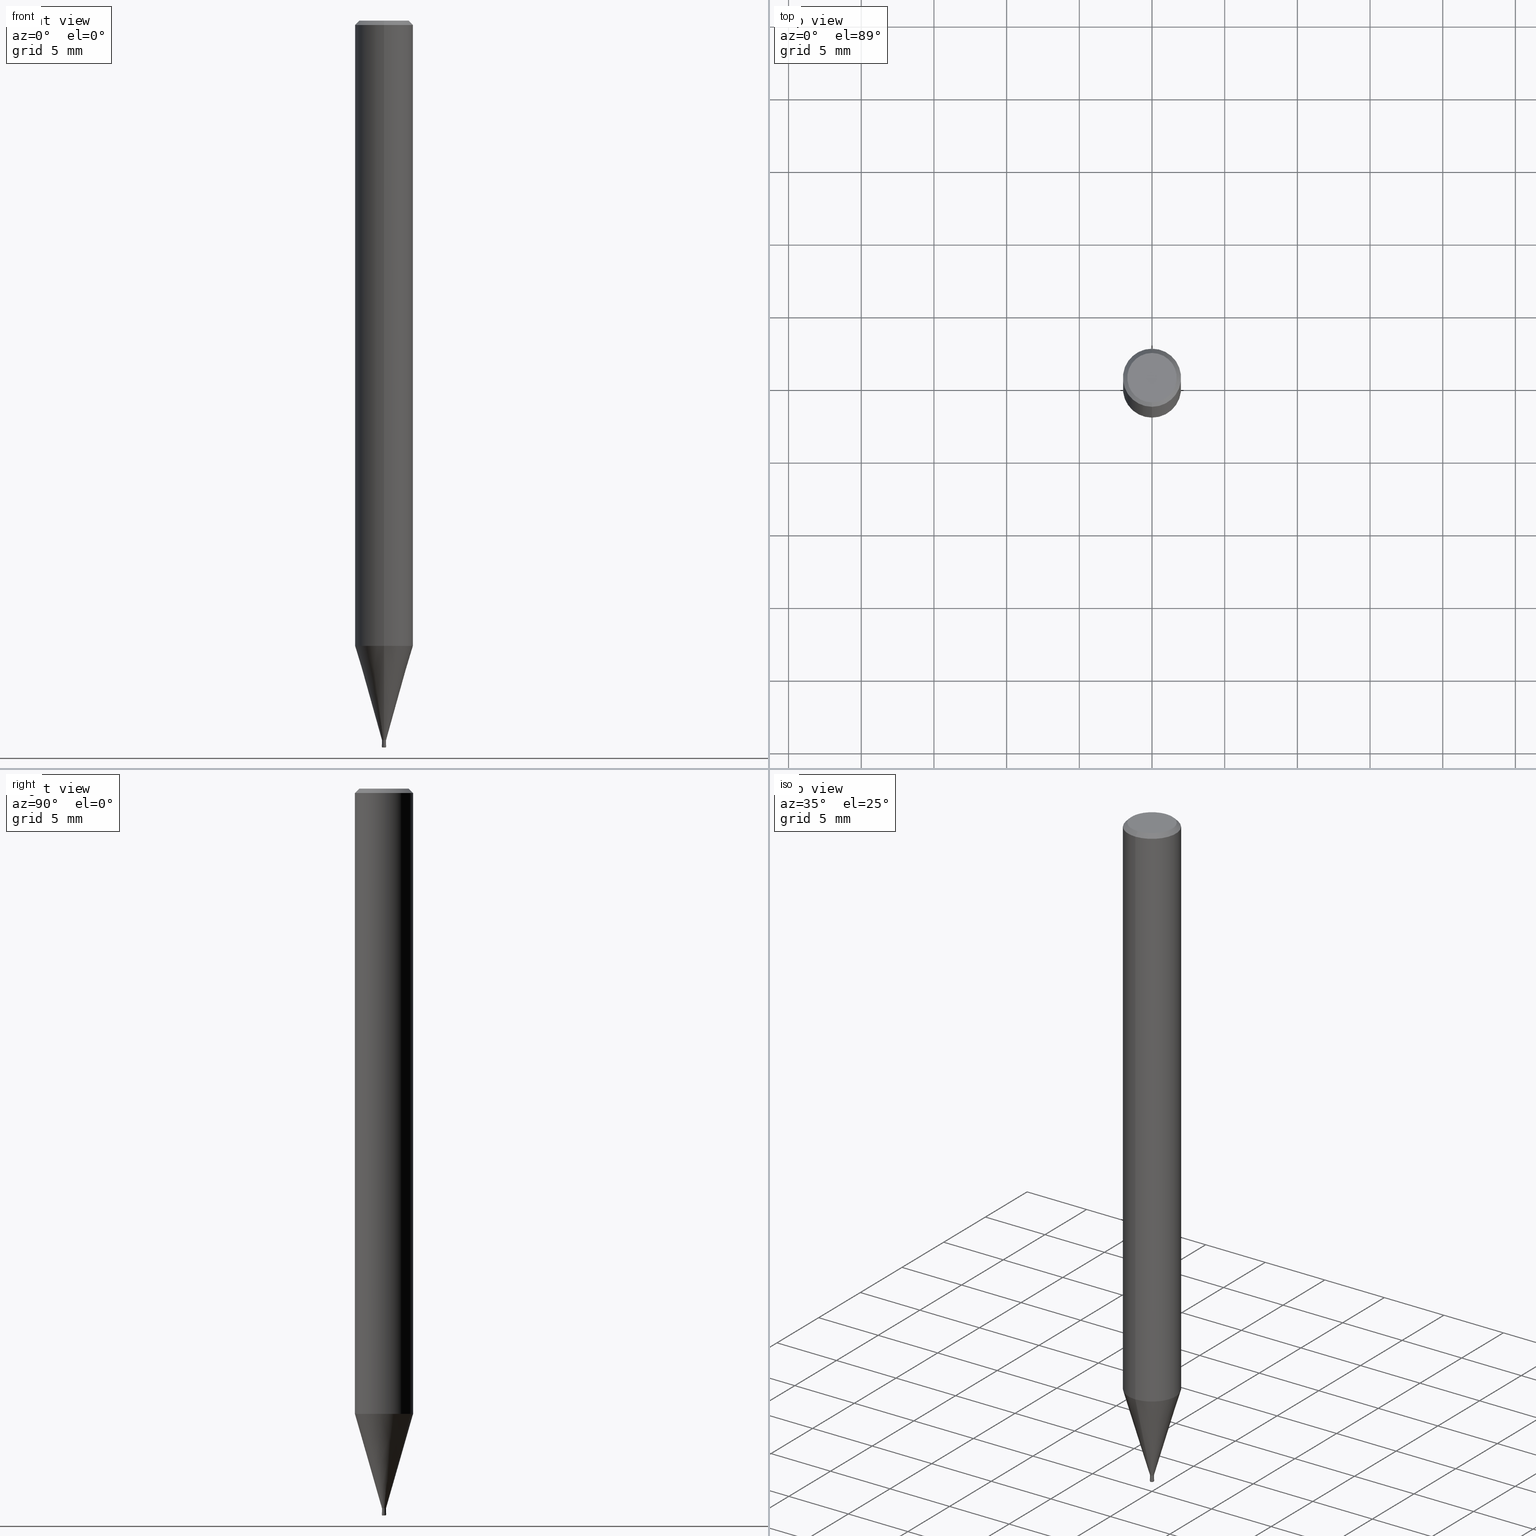
[diagram: canonical four-view strip — front | top / right | iso, engineering-drawing reading convention]
A machine part, canonical four-view strip (front | top / right | iso — engineering-drawing reading convention). The complete STEP part file that produces these views, byte-faithful:
ISO-10303-21;
HEADER;
FILE_DESCRIPTION(('no description'),'unknown implementation level');
FILE_NAME('HLRS4003-005-005-Huellk.stp','  ',('CIMSOURCE GmbH'),('CADClick - KiM GmbH - www.kimweb.de'),'unknown preprocess','ACIS','unknown authorization');
FILE_SCHEMA(('automotive_design'));
ENDSEC;
DATA;
#1=MECHANICAL_DESIGN_GEOMETRIC_PRESENTATION_REPRESENTATION(' ',(#14,#15,#16,#17,#18,#19,#20,#21,#22,#23,#24,#25,#26,#27,#28,#29,#30,#31,#32,#33,#34,#35,#36,#37,#38,#39,#40,#41,#42,#43,#44,#45,#46,#47,#48,#49,#50,#51,#52,#53,#54,#55,#56,#57,#58,#59,#60,#61,#62,#63,#64,#65,#66,#67,#68,#69,#70,#71,#72,#73,#74,#75,#76,#77,#78,#79,#80,#81,#82,#83,#84,#85,#86,#87,#88,#89,#90,#91,#92,#93,#94,#95,#96,#97,#98,#99,#100,#101,#102,#103,#104,#105,#106,#107,#108,#109,#110,#111,#112,#113,#114,#115,#116,#117,#118,#119,#120,#121),#10);
#2=PRODUCT_DEFINITION_CONTEXT('',#122,'design');
#3=APPLICATION_PROTOCOL_DEFINITION('INTERNATIONAL STANDARD','automotive_design',1994,#122);
#4=PRODUCT_CATEGORY_RELATIONSHIP('NONE','NONE',#123,#124);
#5=SHAPE_DEFINITION_REPRESENTATION(#125,#126);
#6=PRODUCT_DEFINITION_CONTEXT('',#127,'design');
#7=APPLICATION_PROTOCOL_DEFINITION('INTERNATIONAL STANDARD','automotive_design',1994,#127);
#8=PRODUCT_CATEGORY_RELATIONSHIP('NONE','NONE',#128,#129);
#9=SHAPE_DEFINITION_REPRESENTATION(#130,#131);
#10= (GEOMETRIC_REPRESENTATION_CONTEXT(3)GLOBAL_UNCERTAINTY_ASSIGNED_CONTEXT((#134))GLOBAL_UNIT_ASSIGNED_CONTEXT((#136,#137,#138))REPRESENTATION_CONTEXT('NONE','WORKSPACE'));
#14=STYLED_ITEM('',(#140),#141);
#15=STYLED_ITEM('',(#142),#143);
#16=STYLED_ITEM('',(#144),#145);
#17=STYLED_ITEM('',(#146),#147);
#18=STYLED_ITEM('',(#148),#149);
#19=STYLED_ITEM('',(#150),#151);
#20=STYLED_ITEM('',(#152),#153);
#21=STYLED_ITEM('',(#154),#155);
#22=STYLED_ITEM('',(#156),#157);
#23=STYLED_ITEM('',(#158),#159);
#24=STYLED_ITEM('',(#160),#161);
#25=STYLED_ITEM('',(#162),#163);
#26=STYLED_ITEM('',(#164),#165);
#27=STYLED_ITEM('',(#166),#167);
#28=STYLED_ITEM('',(#168),#169);
#29=STYLED_ITEM('',(#170),#171);
#30=STYLED_ITEM('',(#172),#173);
#31=STYLED_ITEM('',(#174),#175);
#32=STYLED_ITEM('',(#176),#177);
#33=STYLED_ITEM('',(#178),#179);
#34=STYLED_ITEM('',(#180),#181);
#35=STYLED_ITEM('',(#182),#183);
#36=STYLED_ITEM('',(#184),#185);
#37=STYLED_ITEM('',(#186),#187);
#38=STYLED_ITEM('',(#188),#189);
#39=STYLED_ITEM('',(#190),#191);
#40=STYLED_ITEM('',(#192),#193);
#41=STYLED_ITEM('',(#194),#195);
#42=STYLED_ITEM('',(#196),#197);
#43=STYLED_ITEM('',(#198),#199);
#44=STYLED_ITEM('',(#200),#201);
#45=STYLED_ITEM('',(#202),#203);
#46=STYLED_ITEM('',(#204),#205);
#47=STYLED_ITEM('',(#206),#207);
#48=STYLED_ITEM('',(#208),#209);
#49=STYLED_ITEM('',(#210),#211);
#50=STYLED_ITEM('',(#212),#213);
#51=STYLED_ITEM('',(#214),#215);
#52=STYLED_ITEM('',(#216),#217);
#53=STYLED_ITEM('',(#218),#219);
#54=STYLED_ITEM('',(#220),#221);
#55=STYLED_ITEM('',(#222),#223);
#56=STYLED_ITEM('',(#224),#225);
#57=STYLED_ITEM('',(#226),#227);
#58=STYLED_ITEM('',(#228),#229);
#59=STYLED_ITEM('',(#230),#231);
#60=STYLED_ITEM('',(#232),#233);
#61=STYLED_ITEM('',(#234),#235);
#62=STYLED_ITEM('',(#236),#237);
#63=STYLED_ITEM('',(#238),#239);
#64=STYLED_ITEM('',(#240),#241);
#65=STYLED_ITEM('',(#242),#243);
#66=STYLED_ITEM('',(#244),#245);
#67=STYLED_ITEM('',(#246),#247);
#68=STYLED_ITEM('',(#248),#249);
#69=STYLED_ITEM('',(#250),#251);
#70=STYLED_ITEM('',(#252),#253);
#71=STYLED_ITEM('',(#254),#255);
#72=STYLED_ITEM('',(#256),#257);
#73=STYLED_ITEM('',(#258),#259);
#74=STYLED_ITEM('',(#260),#261);
#75=STYLED_ITEM('',(#262),#263);
#76=STYLED_ITEM('',(#264),#265);
#77=STYLED_ITEM('',(#266),#267);
#78=STYLED_ITEM('',(#268),#269);
#79=STYLED_ITEM('',(#270),#271);
#80=STYLED_ITEM('',(#272),#273);
#81=STYLED_ITEM('',(#274),#275);
#82=STYLED_ITEM('',(#276),#277);
#83=STYLED_ITEM('',(#278),#279);
#84=STYLED_ITEM('',(#280),#281);
#85=STYLED_ITEM('',(#282),#283);
#86=STYLED_ITEM('',(#284),#285);
#87=STYLED_ITEM('',(#286),#287);
#88=STYLED_ITEM('',(#288),#289);
#89=STYLED_ITEM('',(#290),#291);
#90=STYLED_ITEM('',(#292),#293);
#91=STYLED_ITEM('',(#294),#295);
#92=STYLED_ITEM('',(#296),#297);
#93=STYLED_ITEM('',(#298),#299);
#94=STYLED_ITEM('',(#300),#301);
#95=STYLED_ITEM('',(#302),#303);
#96=STYLED_ITEM('',(#304),#305);
#97=STYLED_ITEM('',(#306),#307);
#98=STYLED_ITEM('',(#308),#309);
#99=STYLED_ITEM('',(#310),#311);
#100=STYLED_ITEM('',(#312),#313);
#101=STYLED_ITEM('',(#314),#315);
#102=STYLED_ITEM('',(#316),#317);
#103=STYLED_ITEM('',(#318),#319);
#104=STYLED_ITEM('',(#320),#321);
#105=STYLED_ITEM('',(#322),#323);
#106=STYLED_ITEM('',(#324),#325);
#107=STYLED_ITEM('',(#326),#327);
#108=STYLED_ITEM('',(#328),#329);
#109=STYLED_ITEM('',(#330),#331);
#110=STYLED_ITEM('',(#332),#333);
#111=STYLED_ITEM('',(#334),#335);
#112=STYLED_ITEM('',(#336),#337);
#113=STYLED_ITEM('',(#338),#339);
#114=STYLED_ITEM('',(#340),#341);
#115=STYLED_ITEM('',(#342),#343);
#116=STYLED_ITEM('',(#344),#345);
#117=STYLED_ITEM('',(#346),#347);
#118=STYLED_ITEM('',(#348),#349);
#119=STYLED_ITEM('',(#350),#351);
#120=STYLED_ITEM('',(#352),#353);
#121=STYLED_ITEM('',(#354),#355);
#122=APPLICATION_CONTEXT(' ');
#123=PRODUCT_CATEGORY('part','NONE');
#124=PRODUCT_RELATED_PRODUCT_CATEGORY('detail',' ',(#356));
#125=PRODUCT_DEFINITION_SHAPE('NONE','NONE',#357);
#126=ADVANCED_BREP_SHAPE_REPRESENTATION('1',(#287,#358),#10);
#127=APPLICATION_CONTEXT(' ');
#128=PRODUCT_CATEGORY('part','NONE');
#129=PRODUCT_RELATED_PRODUCT_CATEGORY('detail',' ',(#359));
#130=PRODUCT_DEFINITION_SHAPE('NONE','NONE',#360);
#131=ADVANCED_BREP_SHAPE_REPRESENTATION('2',(#259,#361),#10);
#134=UNCERTAINTY_MEASURE_WITH_UNIT(LENGTH_MEASURE(1.0E-006),#136,'','');
#136= (CONVERSION_BASED_UNIT('MILLIMETRE',#364)LENGTH_UNIT()NAMED_UNIT(#367));
#137= (NAMED_UNIT(#369)PLANE_ANGLE_UNIT()SI_UNIT($,.RADIAN.));
#138= (NAMED_UNIT(#369)SOLID_ANGLE_UNIT()SI_UNIT($,.STERADIAN.));
#140=PRESENTATION_STYLE_ASSIGNMENT((#375));
#141=ADVANCED_FACE('',(#376,#377),#378,.T.);
#142=PRESENTATION_STYLE_ASSIGNMENT((#379));
#143=EDGE_CURVE('',#223,#183,#380,.T.);
#144=PRESENTATION_STYLE_ASSIGNMENT((#381));
#145=ADVANCED_FACE('',(#382),#383,.T.);
#146=PRESENTATION_STYLE_ASSIGNMENT((#384));
#147=ADVANCED_FACE('',(#385),#386,.T.);
#148=PRESENTATION_STYLE_ASSIGNMENT((#387));
#149=EDGE_CURVE('',#195,#309,#388,.T.);
#150=PRESENTATION_STYLE_ASSIGNMENT((#389));
#151=EDGE_CURVE('',#355,#333,#390,.T.);
#152=PRESENTATION_STYLE_ASSIGNMENT((#391));
#153=VERTEX_POINT('',#392);
#154=PRESENTATION_STYLE_ASSIGNMENT((#393));
#155=ADVANCED_FACE('',(#394),#395,.T.);
#156=PRESENTATION_STYLE_ASSIGNMENT((#396));
#157=EDGE_CURVE('',#183,#223,#397,.T.);
#158=PRESENTATION_STYLE_ASSIGNMENT((#398));
#159=VERTEX_POINT('',#399);
#160=PRESENTATION_STYLE_ASSIGNMENT((#400));
#161=EDGE_CURVE('',#239,#271,#401,.T.);
#162=PRESENTATION_STYLE_ASSIGNMENT((#402));
#163=EDGE_CURVE('',#339,#159,#403,.T.);
#164=PRESENTATION_STYLE_ASSIGNMENT((#404));
#165=ADVANCED_FACE('',(#405),#406,.T.);
#166=PRESENTATION_STYLE_ASSIGNMENT((#407));
#167=EDGE_CURVE('',#223,#355,#408,.T.);
#168=PRESENTATION_STYLE_ASSIGNMENT((#409));
#169=VERTEX_POINT('',#410);
#170=PRESENTATION_STYLE_ASSIGNMENT((#411));
#171=ADVANCED_FACE('',(#412),#413,.T.);
#172=PRESENTATION_STYLE_ASSIGNMENT((#414));
#173=VERTEX_POINT('',#415);
#174=PRESENTATION_STYLE_ASSIGNMENT((#416));
#175=EDGE_CURVE('',#173,#195,#417,.T.);
#176=PRESENTATION_STYLE_ASSIGNMENT((#418));
#177=VERTEX_POINT('',#419);
#178=PRESENTATION_STYLE_ASSIGNMENT((#420));
#179=ADVANCED_FACE('',(#421),#422,.T.);
#180=PRESENTATION_STYLE_ASSIGNMENT((#423));
#181=VERTEX_POINT('',#424);
#182=PRESENTATION_STYLE_ASSIGNMENT((#425));
#183=VERTEX_POINT('',#426);
#184=PRESENTATION_STYLE_ASSIGNMENT((#427));
#185=ADVANCED_FACE('',(#428,#429),#430,.T.);
#186=PRESENTATION_STYLE_ASSIGNMENT((#431));
#187=EDGE_CURVE('',#343,#339,#432,.T.);
#188=PRESENTATION_STYLE_ASSIGNMENT((#433));
#189=VERTEX_POINT('',#434);
#190=PRESENTATION_STYLE_ASSIGNMENT((#435));
#191=ADVANCED_FACE('',(#436),#437,.T.);
#192=PRESENTATION_STYLE_ASSIGNMENT((#438));
#193=VERTEX_POINT('',#439);
#194=PRESENTATION_STYLE_ASSIGNMENT((#440));
#195=VERTEX_POINT('',#441);
#196=PRESENTATION_STYLE_ASSIGNMENT((#442));
#197=EDGE_CURVE('',#333,#183,#443,.T.);
#198=PRESENTATION_STYLE_ASSIGNMENT((#444));
#199=EDGE_CURVE('',#309,#193,#445,.T.);
#200=PRESENTATION_STYLE_ASSIGNMENT((#446));
#201=EDGE_CURVE('',#213,#173,#447,.T.);
#202=PRESENTATION_STYLE_ASSIGNMENT((#448));
#203=VERTEX_POINT('',#449);
#204=PRESENTATION_STYLE_ASSIGNMENT((#450));
#205=VERTEX_POINT('',#451);
#206=PRESENTATION_STYLE_ASSIGNMENT((#452));
#207=EDGE_CURVE('',#189,#307,#453,.T.);
#208=PRESENTATION_STYLE_ASSIGNMENT((#454));
#209=EDGE_CURVE('',#153,#195,#455,.T.);
#210=PRESENTATION_STYLE_ASSIGNMENT((#456));
#211=VERTEX_POINT('',#457);
#212=PRESENTATION_STYLE_ASSIGNMENT((#458));
#213=VERTEX_POINT('',#459);
#214=PRESENTATION_STYLE_ASSIGNMENT((#460));
#215=EDGE_CURVE('',#271,#203,#461,.T.);
#216=PRESENTATION_STYLE_ASSIGNMENT((#462));
#217=VERTEX_POINT('',#463);
#218=PRESENTATION_STYLE_ASSIGNMENT((#464));
#219=EDGE_CURVE('',#153,#193,#465,.T.);
#220=PRESENTATION_STYLE_ASSIGNMENT((#466));
#221=EDGE_CURVE('',#271,#239,#467,.T.);
#222=PRESENTATION_STYLE_ASSIGNMENT((#468));
#223=VERTEX_POINT('',#469);
#224=PRESENTATION_STYLE_ASSIGNMENT((#470));
#225=EDGE_CURVE('',#205,#181,#471,.T.);
#226=PRESENTATION_STYLE_ASSIGNMENT((#472));
#227=EDGE_CURVE('',#177,#275,#473,.T.);
#228=PRESENTATION_STYLE_ASSIGNMENT((#474));
#229=ADVANCED_FACE('',(#475),#476,.F.);
#230=PRESENTATION_STYLE_ASSIGNMENT((#477));
#231=VERTEX_POINT('',#478);
#232=PRESENTATION_STYLE_ASSIGNMENT((#479));
#233=EDGE_CURVE('',#211,#301,#480,.T.);
#234=PRESENTATION_STYLE_ASSIGNMENT((#481));
#235=ADVANCED_FACE('',(#482),#483,.T.);
#236=PRESENTATION_STYLE_ASSIGNMENT((#484));
#237=EDGE_CURVE('',#307,#223,#485,.T.);
#238=PRESENTATION_STYLE_ASSIGNMENT((#486));
#239=VERTEX_POINT('',#487);
#240=PRESENTATION_STYLE_ASSIGNMENT((#488));
#241=ADVANCED_FACE('',(#489),#490,.F.);
#242=PRESENTATION_STYLE_ASSIGNMENT((#491));
#243=EDGE_CURVE('',#177,#217,#492,.T.);
#244=PRESENTATION_STYLE_ASSIGNMENT((#493));
#245=EDGE_CURVE('',#181,#205,#494,.T.);
#246=PRESENTATION_STYLE_ASSIGNMENT((#495));
#247=EDGE_CURVE('',#333,#355,#496,.T.);
#248=PRESENTATION_STYLE_ASSIGNMENT((#497));
#249=EDGE_CURVE('',#231,#275,#498,.T.);
#250=PRESENTATION_STYLE_ASSIGNMENT((#499));
#251=ADVANCED_FACE('',(#500),#501,.T.);
#252=PRESENTATION_STYLE_ASSIGNMENT((#502));
#253=EDGE_CURVE('',#231,#217,#503,.T.);
#254=PRESENTATION_STYLE_ASSIGNMENT((#504));
#255=ADVANCED_FACE('',(#505),#506,.T.);
#256=PRESENTATION_STYLE_ASSIGNMENT((#507));
#257=VERTEX_POINT('',#508);
#258=PRESENTATION_STYLE_ASSIGNMENT((#509));
#259=MANIFOLD_SOLID_BREP('2',#510);
#260=PRESENTATION_STYLE_ASSIGNMENT((#511));
#261=EDGE_CURVE('',#351,#203,#512,.T.);
#262=PRESENTATION_STYLE_ASSIGNMENT((#513));
#263=EDGE_CURVE('',#159,#257,#514,.T.);
#264=PRESENTATION_STYLE_ASSIGNMENT((#515));
#265=ADVANCED_FACE('',(#516,#517),#518,.T.);
#266=PRESENTATION_STYLE_ASSIGNMENT((#519));
#267=EDGE_CURVE('',#173,#213,#520,.T.);
#268=PRESENTATION_STYLE_ASSIGNMENT((#521));
#269=ADVANCED_FACE('',(#522),#523,.T.);
#270=PRESENTATION_STYLE_ASSIGNMENT((#524));
#271=VERTEX_POINT('',#525);
#272=PRESENTATION_STYLE_ASSIGNMENT((#526));
#273=ADVANCED_FACE('',(#527),#528,.T.);
#274=PRESENTATION_STYLE_ASSIGNMENT((#529));
#275=VERTEX_POINT('',#530);
#276=PRESENTATION_STYLE_ASSIGNMENT((#531));
#277=EDGE_CURVE('',#343,#301,#532,.T.);
#278=PRESENTATION_STYLE_ASSIGNMENT((#533));
#279=ADVANCED_FACE('',(#534),#535,.T.);
#280=PRESENTATION_STYLE_ASSIGNMENT((#536));
#281=EDGE_CURVE('',#339,#343,#537,.T.);
#282=PRESENTATION_STYLE_ASSIGNMENT((#538));
#283=ADVANCED_FACE('',(#539,#540),#541,.T.);
#284=PRESENTATION_STYLE_ASSIGNMENT((#542));
#285=EDGE_CURVE('',#239,#205,#543,.T.);
#286=PRESENTATION_STYLE_ASSIGNMENT((#544));
#287=MANIFOLD_SOLID_BREP('1',#545);
#288=PRESENTATION_STYLE_ASSIGNMENT((#546));
#289=EDGE_CURVE('',#181,#271,#547,.T.);
#290=PRESENTATION_STYLE_ASSIGNMENT((#548));
#291=EDGE_CURVE('',#193,#153,#549,.T.);
#292=PRESENTATION_STYLE_ASSIGNMENT((#550));
#293=EDGE_CURVE('',#257,#159,#551,.T.);
#294=PRESENTATION_STYLE_ASSIGNMENT((#552));
#295=EDGE_CURVE('',#169,#311,#553,.T.);
#296=PRESENTATION_STYLE_ASSIGNMENT((#554));
#297=ADVANCED_FACE('',(#555),#556,.T.);
#298=PRESENTATION_STYLE_ASSIGNMENT((#557));
#299=EDGE_CURVE('',#275,#311,#558,.T.);
#300=PRESENTATION_STYLE_ASSIGNMENT((#559));
#301=VERTEX_POINT('',#560);
#302=PRESENTATION_STYLE_ASSIGNMENT((#561));
#303=ADVANCED_FACE('',(#562),#563,.T.);
#304=PRESENTATION_STYLE_ASSIGNMENT((#564));
#305=EDGE_CURVE('',#307,#189,#565,.T.);
#306=PRESENTATION_STYLE_ASSIGNMENT((#566));
#307=VERTEX_POINT('',#567);
#308=PRESENTATION_STYLE_ASSIGNMENT((#568));
#309=VERTEX_POINT('',#569);
#310=PRESENTATION_STYLE_ASSIGNMENT((#570));
#311=VERTEX_POINT('',#571);
#312=PRESENTATION_STYLE_ASSIGNMENT((#572));
#313=EDGE_CURVE('',#275,#231,#573,.T.);
#314=PRESENTATION_STYLE_ASSIGNMENT((#574));
#315=ADVANCED_FACE('',(#575),#576,.T.);
#316=PRESENTATION_STYLE_ASSIGNMENT((#577));
#317=EDGE_CURVE('',#257,#343,#578,.T.);
#318=PRESENTATION_STYLE_ASSIGNMENT((#579));
#319=EDGE_CURVE('',#203,#351,#580,.T.);
#320=PRESENTATION_STYLE_ASSIGNMENT((#581));
#321=EDGE_CURVE('',#183,#189,#582,.T.);
#322=PRESENTATION_STYLE_ASSIGNMENT((#583));
#323=ADVANCED_FACE('',(#584),#585,.F.);
#324=PRESENTATION_STYLE_ASSIGNMENT((#586));
#325=EDGE_CURVE('',#301,#211,#587,.T.);
#326=PRESENTATION_STYLE_ASSIGNMENT((#588));
#327=EDGE_CURVE('',#309,#213,#589,.T.);
#328=PRESENTATION_STYLE_ASSIGNMENT((#590));
#329=EDGE_CURVE('',#169,#231,#591,.T.);
#330=PRESENTATION_STYLE_ASSIGNMENT((#592));
#331=ADVANCED_FACE('',(#593),#594,.T.);
#332=PRESENTATION_STYLE_ASSIGNMENT((#595));
#333=VERTEX_POINT('',#596);
#334=PRESENTATION_STYLE_ASSIGNMENT((#597));
#335=EDGE_CURVE('',#211,#339,#598,.T.);
#336=PRESENTATION_STYLE_ASSIGNMENT((#599));
#337=EDGE_CURVE('',#309,#195,#600,.T.);
#338=PRESENTATION_STYLE_ASSIGNMENT((#601));
#339=VERTEX_POINT('',#602);
#340=PRESENTATION_STYLE_ASSIGNMENT((#603));
#341=EDGE_CURVE('',#351,#239,#604,.T.);
#342=PRESENTATION_STYLE_ASSIGNMENT((#605));
#343=VERTEX_POINT('',#606);
#344=PRESENTATION_STYLE_ASSIGNMENT((#607));
#345=ADVANCED_FACE('',(#608),#609,.F.);
#346=PRESENTATION_STYLE_ASSIGNMENT((#610));
#347=EDGE_CURVE('',#217,#177,#611,.T.);
#348=PRESENTATION_STYLE_ASSIGNMENT((#612));
#349=ADVANCED_FACE('',(#613),#614,.T.);
#350=PRESENTATION_STYLE_ASSIGNMENT((#615));
#351=VERTEX_POINT('',#616);
#352=PRESENTATION_STYLE_ASSIGNMENT((#617));
#353=EDGE_CURVE('',#311,#169,#618,.T.);
#354=PRESENTATION_STYLE_ASSIGNMENT((#619));
#355=VERTEX_POINT('',#620);
#356=PRODUCT('1','1','PART-1-DESC',(#621));
#357=PRODUCT_DEFINITION('NONE','NONE',#622,#2);
#358=AXIS2_PLACEMENT_3D('',#623,#624,#625);
#359=PRODUCT('2','2','PART-2-DESC',(#626));
#360=PRODUCT_DEFINITION('NONE','NONE',#627,#6);
#361=AXIS2_PLACEMENT_3D('',#628,#629,#630);
#364=LENGTH_MEASURE_WITH_UNIT(LENGTH_MEASURE(1.0),#631);
#367=DIMENSIONAL_EXPONENTS(1.0,0.0,0.0,0.0,0.0,0.0,0.0);
#369=DIMENSIONAL_EXPONENTS(0.0,0.0,0.0,0.0,0.0,0.0,0.0);
#375=SURFACE_STYLE_USAGE(.BOTH.,#632);
#376=FACE_OUTER_BOUND('',#633,.T.);
#377=FACE_BOUND('',#634,.T.);
#378=PLANE('',#635);
#379=CURVE_STYLE('',#636,POSITIVE_LENGTH_MEASURE(1.0E-006),#637);
#380=CIRCLE('',#638,0.13995);
#381=SURFACE_STYLE_USAGE(.BOTH.,#639);
#382=FACE_OUTER_BOUND('',#640,.T.);
#383=CONICAL_SURFACE('',#641,0.106225,1.44239116379722);
#384=SURFACE_STYLE_USAGE(.BOTH.,#642);
#385=FACE_OUTER_BOUND('',#643,.T.);
#386=CYLINDRICAL_SURFACE('',#644,0.13995);
#387=CURVE_STYLE('',#645,POSITIVE_LENGTH_MEASURE(1.0E-006),#646);
#388=CIRCLE('',#647,0.15);
#389=CURVE_STYLE('',#648,POSITIVE_LENGTH_MEASURE(1.0E-006),#649);
#390=CIRCLE('',#650,1.99995);
#391=POINT_STYLE(' ',#651,POSITIVE_LENGTH_MEASURE(1.0E-006),#652);
#392=CARTESIAN_POINT('',(0.0,0.1,-49.99));
#393=SURFACE_STYLE_USAGE(.BOTH.,#653);
#394=FACE_OUTER_BOUND('',#654,.T.);
#395=PLANE('',#655);
#396=CURVE_STYLE('',#656,POSITIVE_LENGTH_MEASURE(1.0E-006),#657);
#397=CIRCLE('',#658,0.13995);
#398=POINT_STYLE(' ',#659,POSITIVE_LENGTH_MEASURE(1.0E-006),#660);
#399=CARTESIAN_POINT('',(1.77445460668862E-017,-0.1449,-49.81));
#400=CURVE_STYLE('',#661,POSITIVE_LENGTH_MEASURE(1.0E-006),#662);
#401=CIRCLE('',#663,0.0675);
#402=CURVE_STYLE('',#664,POSITIVE_LENGTH_MEASURE(1.0E-006),#665);
#403=LINE('',#666,#667);
#404=SURFACE_STYLE_USAGE(.BOTH.,#668);
#405=FACE_OUTER_BOUND('',#669,.T.);
#406=CYLINDRICAL_SURFACE('',#670,2.0);
#407=CURVE_STYLE('',#671,POSITIVE_LENGTH_MEASURE(1.0E-006),#672);
#408=LINE('',#673,#674);
#409=POINT_STYLE(' ',#675,POSITIVE_LENGTH_MEASURE(1.0E-006),#676);
#410=CARTESIAN_POINT('',(0.0,1.7,0.00999999999999801));
#411=SURFACE_STYLE_USAGE(.BOTH.,#677);
#412=FACE_OUTER_BOUND('',#678,.T.);
#413=CONICAL_SURFACE('',#679,0.14995,0.000769230617508693);
#414=POINT_STYLE(' ',#680,POSITIVE_LENGTH_MEASURE(1.0E-006),#681);
#415=CARTESIAN_POINT('',(0.0,0.1499,-49.81));
#416=CURVE_STYLE('',#682,POSITIVE_LENGTH_MEASURE(1.0E-006),#683);
#417=LINE('',#684,#685);
#418=POINT_STYLE(' ',#686,POSITIVE_LENGTH_MEASURE(1.0E-006),#687);
#419=CARTESIAN_POINT('',(2.44921270764475E-016,-2.0,-43.003));
#420=SURFACE_STYLE_USAGE(.BOTH.,#688);
#421=FACE_OUTER_BOUND('',#689,.T.);
#422=CYLINDRICAL_SURFACE('',#690,0.0675);
#423=POINT_STYLE(' ',#691,POSITIVE_LENGTH_MEASURE(1.0E-006),#692);
#424=CARTESIAN_POINT('',(0.0,0.14495,-49.81));
#425=POINT_STYLE(' ',#693,POSITIVE_LENGTH_MEASURE(1.0E-006),#694);
#426=CARTESIAN_POINT('',(0.0,0.13995,-49.49));
#427=SURFACE_STYLE_USAGE(.BOTH.,#695);
#428=FACE_OUTER_BOUND('',#696,.T.);
#429=FACE_BOUND('',#697,.T.);
#430=PLANE('',#698);
#431=CURVE_STYLE('',#699,POSITIVE_LENGTH_MEASURE(1.0E-006),#700);
#432=CIRCLE('',#701,0.0675);
#433=POINT_STYLE(' ',#702,POSITIVE_LENGTH_MEASURE(1.0E-006),#703);
#434=CARTESIAN_POINT('',(0.0,0.13995,-49.81));
#435=SURFACE_STYLE_USAGE(.BOTH.,#704);
#436=FACE_OUTER_BOUND('',#705,.T.);
#437=CYLINDRICAL_SURFACE('',#706,0.13995);
#438=POINT_STYLE(' ',#707,POSITIVE_LENGTH_MEASURE(1.0E-006),#708);
#439=CARTESIAN_POINT('',(1.22460635382238E-017,-0.1,-49.99));
#440=POINT_STYLE(' ',#709,POSITIVE_LENGTH_MEASURE(1.0E-006),#710);
#441=CARTESIAN_POINT('',(0.0,0.15,-49.94));
#442=CURVE_STYLE('',#711,POSITIVE_LENGTH_MEASURE(1.0E-006),#712);
#443=LINE('',#713,#714);
#444=CURVE_STYLE('',#715,POSITIVE_LENGTH_MEASURE(1.0E-006),#716);
#445=CIRCLE('',#717,0.05);
#446=CURVE_STYLE('',#718,POSITIVE_LENGTH_MEASURE(1.0E-006),#719);
#447=CIRCLE('',#720,0.1499);
#448=POINT_STYLE(' ',#721,POSITIVE_LENGTH_MEASURE(1.0E-006),#722);
#449=CARTESIAN_POINT('',(0.0,0.0675,-49.945));
#450=POINT_STYLE(' ',#723,POSITIVE_LENGTH_MEASURE(1.0E-006),#724);
#451=CARTESIAN_POINT('',(1.77506690986554E-017,-0.14495,-49.81));
#452=CURVE_STYLE('',#725,POSITIVE_LENGTH_MEASURE(1.0E-006),#726);
#453=CIRCLE('',#727,0.13995);
#454=CURVE_STYLE('',#728,POSITIVE_LENGTH_MEASURE(1.0E-006),#729);
#455=CIRCLE('',#730,0.05);
#456=POINT_STYLE(' ',#731,POSITIVE_LENGTH_MEASURE(1.0E-006),#732);
#457=CARTESIAN_POINT('',(8.26609288830105E-018,-0.0675,-49.99));
#458=POINT_STYLE(' ',#733,POSITIVE_LENGTH_MEASURE(1.0E-006),#734);
#459=CARTESIAN_POINT('',(1.83568492437974E-017,-0.1499,-49.81));
#460=CURVE_STYLE('',#735,POSITIVE_LENGTH_MEASURE(1.0E-006),#736);
#461=LINE('',#737,#738);
#462=POINT_STYLE(' ',#739,POSITIVE_LENGTH_MEASURE(1.0E-006),#740);
#463=CARTESIAN_POINT('',(0.0,2.0,-43.003));
#464=CURVE_STYLE('',#741,POSITIVE_LENGTH_MEASURE(1.0E-006),#742);
#465=CIRCLE('',#743,0.1);
#466=CURVE_STYLE('',#744,POSITIVE_LENGTH_MEASURE(1.0E-006),#745);
#467=CIRCLE('',#746,0.0675);
#468=POINT_STYLE(' ',#747,POSITIVE_LENGTH_MEASURE(1.0E-006),#748);
#469=CARTESIAN_POINT('',(1.71383659217442E-017,-0.13995,-49.49));
#470=CURVE_STYLE('',#749,POSITIVE_LENGTH_MEASURE(1.0E-006),#750);
#471=CIRCLE('',#751,0.14495);
#472=CURVE_STYLE('',#752,POSITIVE_LENGTH_MEASURE(1.0E-006),#753);
#473=LINE('',#754,#755);
#474=SURFACE_STYLE_USAGE(.BOTH.,#756);
#475=FACE_OUTER_BOUND('',#757,.T.);
#476=CYLINDRICAL_SURFACE('',#758,0.0675);
#477=POINT_STYLE(' ',#759,POSITIVE_LENGTH_MEASURE(1.0E-006),#760);
#478=CARTESIAN_POINT('',(0.0,2.0,-0.289999999999999));
#479=CURVE_STYLE('',#761,POSITIVE_LENGTH_MEASURE(1.0E-006),#762);
#480=CIRCLE('',#763,0.0675);
#481=SURFACE_STYLE_USAGE(.BOTH.,#764);
#482=FACE_OUTER_BOUND('',#765,.T.);
#483=CYLINDRICAL_SURFACE('',#766,0.0675);
#484=CURVE_STYLE('',#767,POSITIVE_LENGTH_MEASURE(1.0E-006),#768);
#485=LINE('',#769,#770);
#486=POINT_STYLE(' ',#771,POSITIVE_LENGTH_MEASURE(1.0E-006),#772);
#487=CARTESIAN_POINT('',(8.26609288830105E-018,-0.0675,-49.82));
#488=SURFACE_STYLE_USAGE(.BOTH.,#773);
#489=FACE_OUTER_BOUND('',#774,.T.);
#490=CONICAL_SURFACE('',#775,0.1062,1.44230912436268);
#491=CURVE_STYLE('',#776,POSITIVE_LENGTH_MEASURE(1.0E-006),#777);
#492=CIRCLE('',#778,2.0);
#493=CURVE_STYLE('',#779,POSITIVE_LENGTH_MEASURE(1.0E-006),#780);
#494=CIRCLE('',#781,0.14495);
#495=CURVE_STYLE('',#782,POSITIVE_LENGTH_MEASURE(1.0E-006),#783);
#496=CIRCLE('',#784,1.99995);
#497=CURVE_STYLE('',#785,POSITIVE_LENGTH_MEASURE(1.0E-006),#786);
#498=CIRCLE('',#787,2.0);
#499=SURFACE_STYLE_USAGE(.BOTH.,#788);
#500=FACE_OUTER_BOUND('',#789,.T.);
#501=CYLINDRICAL_SURFACE('',#790,2.0);
#502=CURVE_STYLE('',#791,POSITIVE_LENGTH_MEASURE(1.0E-006),#792);
#503=LINE('',#793,#794);
#504=SURFACE_STYLE_USAGE(.BOTH.,#795);
#505=FACE_OUTER_BOUND('',#796,.T.);
#506=CONICAL_SURFACE('',#797,0.14995,0.000769230617508693);
#507=POINT_STYLE(' ',#798,POSITIVE_LENGTH_MEASURE(1.0E-006),#799);
#508=CARTESIAN_POINT('',(0.0,0.1449,-49.81));
#509=SURFACE_STYLE_USAGE(.BOTH.,#800);
#510=CLOSED_SHELL('',(#323,#303,#171,#241,#345,#141,#255,#349,#283,#229));
#511=CURVE_STYLE('',#801,POSITIVE_LENGTH_MEASURE(1.0E-006),#802);
#512=CIRCLE('',#803,0.0675);
#513=CURVE_STYLE('',#804,POSITIVE_LENGTH_MEASURE(1.0E-006),#805);
#514=CIRCLE('',#806,0.1449);
#515=SURFACE_STYLE_USAGE(.BOTH.,#807);
#516=FACE_OUTER_BOUND('',#808,.T.);
#517=FACE_BOUND('',#809,.T.);
#518=PLANE('',#810);
#519=CURVE_STYLE('',#811,POSITIVE_LENGTH_MEASURE(1.0E-006),#812);
#520=CIRCLE('',#813,0.1499);
#521=SURFACE_STYLE_USAGE(.BOTH.,#814);
#522=FACE_OUTER_BOUND('',#815,.T.);
#523=CONICAL_SURFACE('',#816,1.06995,0.27923596926092);
#524=POINT_STYLE(' ',#817,POSITIVE_LENGTH_MEASURE(1.0E-006),#818);
#525=CARTESIAN_POINT('',(0.0,0.0675,-49.82));
#526=SURFACE_STYLE_USAGE(.BOTH.,#819);
#527=FACE_OUTER_BOUND('',#820,.T.);
#528=CONICAL_SURFACE('',#821,1.85,0.785398163397453);
#529=POINT_STYLE(' ',#822,POSITIVE_LENGTH_MEASURE(1.0E-006),#823);
#530=CARTESIAN_POINT('',(2.44921270764475E-016,-2.0,-0.289999999999999));
#531=CURVE_STYLE('',#824,POSITIVE_LENGTH_MEASURE(1.0E-006),#825);
#532=LINE('',#826,#827);
#533=SURFACE_STYLE_USAGE(.BOTH.,#828);
#534=FACE_OUTER_BOUND('',#829,.T.);
#535=CONICAL_SURFACE('',#830,1.06995,0.27923596926092);
#536=CURVE_STYLE('',#831,POSITIVE_LENGTH_MEASURE(1.0E-006),#832);
#537=CIRCLE('',#833,0.0675);
#538=SURFACE_STYLE_USAGE(.BOTH.,#834);
#539=FACE_BOUND('',#835,.T.);
#540=FACE_OUTER_BOUND('',#836,.T.);
#541=PLANE('',#837);
#542=CURVE_STYLE('',#838,POSITIVE_LENGTH_MEASURE(1.0E-006),#839);
#543=LINE('',#840,#841);
#544=SURFACE_STYLE_USAGE(.BOTH.,#842);
#545=CLOSED_SHELL('',(#235,#331,#147,#269,#165,#273,#265,#155,#297,#251,#279,#191,#185,#145,#179,#315));
#546=CURVE_STYLE('',#843,POSITIVE_LENGTH_MEASURE(1.0E-006),#844);
#547=LINE('',#845,#846);
#548=CURVE_STYLE('',#847,POSITIVE_LENGTH_MEASURE(1.0E-006),#848);
#549=CIRCLE('',#849,0.1);
#550=CURVE_STYLE('',#850,POSITIVE_LENGTH_MEASURE(1.0E-006),#851);
#551=CIRCLE('',#852,0.1449);
#552=CURVE_STYLE('',#853,POSITIVE_LENGTH_MEASURE(1.0E-006),#854);
#553=CIRCLE('',#855,1.7);
#554=SURFACE_STYLE_USAGE(.BOTH.,#856);
#555=FACE_OUTER_BOUND('',#857,.T.);
#556=CONICAL_SURFACE('',#858,1.85,0.785398163397453);
#557=CURVE_STYLE('',#859,POSITIVE_LENGTH_MEASURE(1.0E-006),#860);
#558=LINE('',#861,#862);
#559=POINT_STYLE(' ',#863,POSITIVE_LENGTH_MEASURE(1.0E-006),#864);
#560=CARTESIAN_POINT('',(0.0,0.0675,-49.99));
#561=SURFACE_STYLE_USAGE(.BOTH.,#865);
#562=FACE_OUTER_BOUND('',#866,.T.);
#563=TOROIDAL_SURFACE('',#867,0.1,0.05);
#564=CURVE_STYLE('',#868,POSITIVE_LENGTH_MEASURE(1.0E-006),#869);
#565=CIRCLE('',#870,0.13995);
#566=POINT_STYLE(' ',#871,POSITIVE_LENGTH_MEASURE(1.0E-006),#872);
#567=CARTESIAN_POINT('',(1.71383659217442E-017,-0.13995,-49.81));
#568=POINT_STYLE(' ',#873,POSITIVE_LENGTH_MEASURE(1.0E-006),#874);
#569=CARTESIAN_POINT('',(1.83690953073357E-017,-0.15,-49.94));
#570=POINT_STYLE(' ',#875,POSITIVE_LENGTH_MEASURE(1.0E-006),#876);
#571=CARTESIAN_POINT('',(2.08183080149804E-016,-1.7,0.00999999999999801));
#572=CURVE_STYLE('',#877,POSITIVE_LENGTH_MEASURE(1.0E-006),#878);
#573=CIRCLE('',#879,2.0);
#574=SURFACE_STYLE_USAGE(.BOTH.,#880);
#575=FACE_OUTER_BOUND('',#881,.T.);
#576=PLANE('',#882);
#577=CURVE_STYLE('',#883,POSITIVE_LENGTH_MEASURE(1.0E-006),#884);
#578=LINE('',#885,#886);
#579=CURVE_STYLE('',#887,POSITIVE_LENGTH_MEASURE(1.0E-006),#888);
#580=CIRCLE('',#889,0.0675);
#581=CURVE_STYLE('',#890,POSITIVE_LENGTH_MEASURE(1.0E-006),#891);
#582=LINE('',#892,#893);
#583=SURFACE_STYLE_USAGE(.BOTH.,#894);
#584=FACE_OUTER_BOUND('',#895,.T.);
#585=CYLINDRICAL_SURFACE('',#896,0.0675);
#586=CURVE_STYLE('',#897,POSITIVE_LENGTH_MEASURE(1.0E-006),#898);
#587=CIRCLE('',#899,0.0675);
#588=CURVE_STYLE('',#900,POSITIVE_LENGTH_MEASURE(1.0E-006),#901);
#589=LINE('',#902,#903);
#590=CURVE_STYLE('',#904,POSITIVE_LENGTH_MEASURE(1.0E-006),#905);
#591=LINE('',#906,#907);
#592=SURFACE_STYLE_USAGE(.BOTH.,#908);
#593=FACE_OUTER_BOUND('',#909,.T.);
#594=CONICAL_SURFACE('',#910,0.106225,1.44239116379722);
#595=POINT_STYLE(' ',#911,POSITIVE_LENGTH_MEASURE(1.0E-006),#912);
#596=CARTESIAN_POINT('',(0.0,1.99995,-43.003));
#597=CURVE_STYLE('',#913,POSITIVE_LENGTH_MEASURE(1.0E-006),#914);
#598=LINE('',#915,#916);
#599=CURVE_STYLE('',#917,POSITIVE_LENGTH_MEASURE(1.0E-006),#918);
#600=CIRCLE('',#919,0.15);
#601=POINT_STYLE(' ',#920,POSITIVE_LENGTH_MEASURE(1.0E-006),#921);
#602=CARTESIAN_POINT('',(8.26609288830105E-018,-0.0675,-49.82));
#603=CURVE_STYLE('',#922,POSITIVE_LENGTH_MEASURE(1.0E-006),#923);
#604=LINE('',#924,#925);
#605=POINT_STYLE(' ',#926,POSITIVE_LENGTH_MEASURE(1.0E-006),#927);
#606=CARTESIAN_POINT('',(0.0,0.0675,-49.82));
#607=SURFACE_STYLE_USAGE(.BOTH.,#928);
#608=FACE_OUTER_BOUND('',#929,.T.);
#609=CONICAL_SURFACE('',#930,0.1062,1.44230912436268);
#610=CURVE_STYLE('',#931,POSITIVE_LENGTH_MEASURE(1.0E-006),#932);
#611=CIRCLE('',#933,2.0);
#612=SURFACE_STYLE_USAGE(.BOTH.,#934);
#613=FACE_OUTER_BOUND('',#935,.T.);
#614=TOROIDAL_SURFACE('',#936,0.1,0.05);
#615=POINT_STYLE(' ',#937,POSITIVE_LENGTH_MEASURE(1.0E-006),#938);
#616=CARTESIAN_POINT('',(8.26609288830105E-018,-0.0675,-49.945));
#617=CURVE_STYLE('',#939,POSITIVE_LENGTH_MEASURE(1.0E-006),#940);
#618=CIRCLE('',#941,1.7);
#619=POINT_STYLE(' ',#942,POSITIVE_LENGTH_MEASURE(1.0E-006),#943);
#620=CARTESIAN_POINT('',(2.44915147732706E-016,-1.99995,-43.003));
#621=PRODUCT_CONTEXT('',#122,'mechanical');
#622=PRODUCT_DEFINITION_FORMATION_WITH_SPECIFIED_SOURCE(' ','NONE',#356,.NOT_KNOWN.);
#623=CARTESIAN_POINT('',(0.0,0.0,0.0));
#624=DIRECTION('',(0.0,0.0,1.0));
#625=DIRECTION('',(1.0,0.0,0.0));
#626=PRODUCT_CONTEXT('',#127,'mechanical');
#627=PRODUCT_DEFINITION_FORMATION_WITH_SPECIFIED_SOURCE(' ','NONE',#359,.NOT_KNOWN.);
#628=CARTESIAN_POINT('',(0.0,0.0,0.0));
#629=DIRECTION('',(0.0,0.0,1.0));
#630=DIRECTION('',(1.0,0.0,0.0));
#631= (NAMED_UNIT(#367)LENGTH_UNIT()SI_UNIT(.MILLI.,.METRE.));
#632=SURFACE_SIDE_STYLE('',(#945));
#633=EDGE_LOOP('',(#946,#947));
#634=EDGE_LOOP('',(#948,#949));
#635=AXIS2_PLACEMENT_3D('',#950,#951,#952);
#636=DRAUGHTING_PRE_DEFINED_CURVE_FONT('continuous');
#637=COLOUR_RGB('',0.498039215803146,0.498039215803146,0.498039215803146);
#638=AXIS2_PLACEMENT_3D('',#953,#954,#955);
#639=SURFACE_SIDE_STYLE('',(#956));
#640=EDGE_LOOP('',(#957,#958,#959,#960));
#641=AXIS2_PLACEMENT_3D('',#961,#962,#963);
#642=SURFACE_SIDE_STYLE('',(#964));
#643=EDGE_LOOP('',(#965,#966,#967,#968));
#644=AXIS2_PLACEMENT_3D('',#969,#970,#971);
#645=DRAUGHTING_PRE_DEFINED_CURVE_FONT('continuous');
#646=COLOUR_RGB('',0.800000011920929,0.800000011920929,0.800000011920929);
#647=AXIS2_PLACEMENT_3D('',#972,#973,#974);
#648=DRAUGHTING_PRE_DEFINED_CURVE_FONT('continuous');
#649=COLOUR_RGB('',0.498039215803146,0.498039215803146,0.498039215803146);
#650=AXIS2_PLACEMENT_3D('',#975,#976,#977);
#651=PRE_DEFINED_MARKER('');
#652=COLOUR_RGB('',0.800000011920929,0.800000011920929,0.800000011920929);
#653=SURFACE_SIDE_STYLE('',(#978));
#654=EDGE_LOOP('',(#979,#980));
#655=AXIS2_PLACEMENT_3D('',#981,#982,#983);
#656=DRAUGHTING_PRE_DEFINED_CURVE_FONT('continuous');
#657=COLOUR_RGB('',0.498039215803146,0.498039215803146,0.498039215803146);
#658=AXIS2_PLACEMENT_3D('',#984,#985,#986);
#659=PRE_DEFINED_MARKER('');
#660=COLOUR_RGB('',0.800000011920929,0.800000011920929,0.800000011920929);
#661=DRAUGHTING_PRE_DEFINED_CURVE_FONT('continuous');
#662=COLOUR_RGB('',0.498039215803146,0.498039215803146,0.498039215803146);
#663=AXIS2_PLACEMENT_3D('',#987,#988,#989);
#664=DRAUGHTING_PRE_DEFINED_CURVE_FONT('continuous');
#665=COLOUR_RGB('',0.800000011920929,0.800000011920929,0.800000011920929);
#666=CARTESIAN_POINT('',(1.30053194775936E-017,-0.1062,-49.815));
#667=VECTOR('',#990,1.0);
#668=SURFACE_SIDE_STYLE('',(#991));
#669=EDGE_LOOP('',(#992,#993,#994,#995));
#670=AXIS2_PLACEMENT_3D('',#996,#997,#998);
#671=DRAUGHTING_PRE_DEFINED_CURVE_FONT('continuous');
#672=COLOUR_RGB('',0.498039215803146,0.498039215803146,0.498039215803146);
#673=CARTESIAN_POINT('',(1.31026756827225E-016,-1.06995,-46.2465));
#674=VECTOR('',#999,1.0);
#675=PRE_DEFINED_MARKER('');
#676=COLOUR_RGB('',0.498039215803146,0.498039215803146,0.498039215803146);
#677=SURFACE_SIDE_STYLE('',(#1000));
#678=EDGE_LOOP('',(#1001,#1002,#1003,#1004));
#679=AXIS2_PLACEMENT_3D('',#1005,#1006,#1007);
#680=PRE_DEFINED_MARKER('');
#681=COLOUR_RGB('',0.800000011920929,0.800000011920929,0.800000011920929);
#682=DRAUGHTING_PRE_DEFINED_CURVE_FONT('continuous');
#683=COLOUR_RGB('',0.800000011920929,0.800000011920929,0.800000011920929);
#684=CARTESIAN_POINT('',(-1.83629722755666E-017,0.14995,-49.875));
#685=VECTOR('',#1008,1.0);
#686=PRE_DEFINED_MARKER('');
#687=COLOUR_RGB('',0.498039215803146,0.498039215803146,0.498039215803146);
#688=SURFACE_SIDE_STYLE('',(#1009));
#689=EDGE_LOOP('',(#1010,#1011,#1012,#1013));
#690=AXIS2_PLACEMENT_3D('',#1014,#1015,#1016);
#691=PRE_DEFINED_MARKER('');
#692=COLOUR_RGB('',0.498039215803146,0.498039215803146,0.498039215803146);
#693=PRE_DEFINED_MARKER('');
#694=COLOUR_RGB('',0.498039215803146,0.498039215803146,0.498039215803146);
#695=SURFACE_SIDE_STYLE('',(#1017));
#696=EDGE_LOOP('',(#1018,#1019));
#697=EDGE_LOOP('',(#1020,#1021));
#698=AXIS2_PLACEMENT_3D('',#1022,#1023,#1024);
#699=DRAUGHTING_PRE_DEFINED_CURVE_FONT('continuous');
#700=COLOUR_RGB('',0.800000011920929,0.800000011920929,0.800000011920929);
#701=AXIS2_PLACEMENT_3D('',#1025,#1026,#1027);
#702=PRE_DEFINED_MARKER('');
#703=COLOUR_RGB('',0.498039215803146,0.498039215803146,0.498039215803146);
#704=SURFACE_SIDE_STYLE('',(#1028));
#705=EDGE_LOOP('',(#1029,#1030,#1031,#1032));
#706=AXIS2_PLACEMENT_3D('',#1033,#1034,#1035);
#707=PRE_DEFINED_MARKER('');
#708=COLOUR_RGB('',0.800000011920929,0.800000011920929,0.800000011920929);
#709=PRE_DEFINED_MARKER('');
#710=COLOUR_RGB('',0.800000011920929,0.800000011920929,0.800000011920929);
#711=DRAUGHTING_PRE_DEFINED_CURVE_FONT('continuous');
#712=COLOUR_RGB('',0.498039215803146,0.498039215803146,0.498039215803146);
#713=CARTESIAN_POINT('',(-1.31026756827225E-016,1.06995,-46.2465));
#714=VECTOR('',#1036,1.0);
#715=DRAUGHTING_PRE_DEFINED_CURVE_FONT('continuous');
#716=COLOUR_RGB('',0.800000011920929,0.800000011920929,0.800000011920929);
#717=AXIS2_PLACEMENT_3D('',#1037,#1038,#1039);
#718=DRAUGHTING_PRE_DEFINED_CURVE_FONT('continuous');
#719=COLOUR_RGB('',0.800000011920929,0.800000011920929,0.800000011920929);
#720=AXIS2_PLACEMENT_3D('',#1040,#1041,#1042);
#721=PRE_DEFINED_MARKER('');
#722=COLOUR_RGB('',0.498039215803146,0.498039215803146,0.498039215803146);
#723=PRE_DEFINED_MARKER('');
#724=COLOUR_RGB('',0.498039215803146,0.498039215803146,0.498039215803146);
#725=DRAUGHTING_PRE_DEFINED_CURVE_FONT('continuous');
#726=COLOUR_RGB('',0.498039215803146,0.498039215803146,0.498039215803146);
#727=AXIS2_PLACEMENT_3D('',#1043,#1044,#1045);
#728=DRAUGHTING_PRE_DEFINED_CURVE_FONT('continuous');
#729=COLOUR_RGB('',0.800000011920929,0.800000011920929,0.800000011920929);
#730=AXIS2_PLACEMENT_3D('',#1046,#1047,#1048);
#731=PRE_DEFINED_MARKER('');
#732=COLOUR_RGB('',0.800000011920929,0.800000011920929,0.800000011920929);
#733=PRE_DEFINED_MARKER('');
#734=COLOUR_RGB('',0.800000011920929,0.800000011920929,0.800000011920929);
#735=DRAUGHTING_PRE_DEFINED_CURVE_FONT('continuous');
#736=COLOUR_RGB('',0.498039215803146,0.498039215803146,0.498039215803146);
#737=CARTESIAN_POINT('',(-8.26609288830105E-018,0.0675,-49.8825));
#738=VECTOR('',#1049,1.0);
#739=PRE_DEFINED_MARKER('');
#740=COLOUR_RGB('',0.498039215803146,0.498039215803146,0.498039215803146);
#741=DRAUGHTING_PRE_DEFINED_CURVE_FONT('continuous');
#742=COLOUR_RGB('',0.800000011920929,0.800000011920929,0.800000011920929);
#743=AXIS2_PLACEMENT_3D('',#1050,#1051,#1052);
#744=DRAUGHTING_PRE_DEFINED_CURVE_FONT('continuous');
#745=COLOUR_RGB('',0.498039215803146,0.498039215803146,0.498039215803146);
#746=AXIS2_PLACEMENT_3D('',#1053,#1054,#1055);
#747=PRE_DEFINED_MARKER('');
#748=COLOUR_RGB('',0.498039215803146,0.498039215803146,0.498039215803146);
#749=DRAUGHTING_PRE_DEFINED_CURVE_FONT('continuous');
#750=COLOUR_RGB('',0.498039215803146,0.498039215803146,0.498039215803146);
#751=AXIS2_PLACEMENT_3D('',#1056,#1057,#1058);
#752=DRAUGHTING_PRE_DEFINED_CURVE_FONT('continuous');
#753=COLOUR_RGB('',0.498039215803146,0.498039215803146,0.498039215803146);
#754=CARTESIAN_POINT('',(2.44921270764475E-016,-2.0,-21.6465));
#755=VECTOR('',#1059,1.0);
#756=SURFACE_SIDE_STYLE('',(#1060));
#757=EDGE_LOOP('',(#1061,#1062,#1063,#1064));
#758=AXIS2_PLACEMENT_3D('',#1065,#1066,#1067);
#759=PRE_DEFINED_MARKER('');
#760=COLOUR_RGB('',0.498039215803146,0.498039215803146,0.498039215803146);
#761=DRAUGHTING_PRE_DEFINED_CURVE_FONT('continuous');
#762=COLOUR_RGB('',0.800000011920929,0.800000011920929,0.800000011920929);
#763=AXIS2_PLACEMENT_3D('',#1068,#1069,#1070);
#764=SURFACE_SIDE_STYLE('',(#1071));
#765=EDGE_LOOP('',(#1072,#1073,#1074,#1075));
#766=AXIS2_PLACEMENT_3D('',#1076,#1077,#1078);
#767=DRAUGHTING_PRE_DEFINED_CURVE_FONT('continuous');
#768=COLOUR_RGB('',0.498039215803146,0.498039215803146,0.498039215803146);
#769=CARTESIAN_POINT('',(1.71383659217442E-017,-0.13995,-49.65));
#770=VECTOR('',#1079,1.0);
#771=PRE_DEFINED_MARKER('');
#772=COLOUR_RGB('',0.498039215803146,0.498039215803146,0.498039215803146);
#773=SURFACE_SIDE_STYLE('',(#1080));
#774=EDGE_LOOP('',(#1081,#1082,#1083,#1084));
#775=AXIS2_PLACEMENT_3D('',#1085,#1086,#1087);
#776=DRAUGHTING_PRE_DEFINED_CURVE_FONT('continuous');
#777=COLOUR_RGB('',0.498039215803146,0.498039215803146,0.498039215803146);
#778=AXIS2_PLACEMENT_3D('',#1088,#1089,#1090);
#779=DRAUGHTING_PRE_DEFINED_CURVE_FONT('continuous');
#780=COLOUR_RGB('',0.498039215803146,0.498039215803146,0.498039215803146);
#781=AXIS2_PLACEMENT_3D('',#1091,#1092,#1093);
#782=DRAUGHTING_PRE_DEFINED_CURVE_FONT('continuous');
#783=COLOUR_RGB('',0.498039215803146,0.498039215803146,0.498039215803146);
#784=AXIS2_PLACEMENT_3D('',#1094,#1095,#1096);
#785=DRAUGHTING_PRE_DEFINED_CURVE_FONT('continuous');
#786=COLOUR_RGB('',0.498039215803146,0.498039215803146,0.498039215803146);
#787=AXIS2_PLACEMENT_3D('',#1097,#1098,#1099);
#788=SURFACE_SIDE_STYLE('',(#1100));
#789=EDGE_LOOP('',(#1101,#1102,#1103,#1104));
#790=AXIS2_PLACEMENT_3D('',#1105,#1106,#1107);
#791=DRAUGHTING_PRE_DEFINED_CURVE_FONT('continuous');
#792=COLOUR_RGB('',0.498039215803146,0.498039215803146,0.498039215803146);
#793=CARTESIAN_POINT('',(-2.44921270764475E-016,2.0,-21.6465));
#794=VECTOR('',#1108,1.0);
#795=SURFACE_SIDE_STYLE('',(#1109));
#796=EDGE_LOOP('',(#1110,#1111,#1112,#1113));
#797=AXIS2_PLACEMENT_3D('',#1114,#1115,#1116);
#798=PRE_DEFINED_MARKER('');
#799=COLOUR_RGB('',0.800000011920929,0.800000011920929,0.800000011920929);
#800=SURFACE_SIDE_STYLE('',(#1117));
#801=DRAUGHTING_PRE_DEFINED_CURVE_FONT('continuous');
#802=COLOUR_RGB('',0.498039215803146,0.498039215803146,0.498039215803146);
#803=AXIS2_PLACEMENT_3D('',#1118,#1119,#1120);
#804=DRAUGHTING_PRE_DEFINED_CURVE_FONT('continuous');
#805=COLOUR_RGB('',0.800000011920929,0.800000011920929,0.800000011920929);
#806=AXIS2_PLACEMENT_3D('',#1121,#1122,#1123);
#807=SURFACE_SIDE_STYLE('',(#1124));
#808=EDGE_LOOP('',(#1125,#1126));
#809=EDGE_LOOP('',(#1127,#1128));
#810=AXIS2_PLACEMENT_3D('',#1129,#1130,#1131);
#811=DRAUGHTING_PRE_DEFINED_CURVE_FONT('continuous');
#812=COLOUR_RGB('',0.800000011920929,0.800000011920929,0.800000011920929);
#813=AXIS2_PLACEMENT_3D('',#1132,#1133,#1134);
#814=SURFACE_SIDE_STYLE('',(#1135));
#815=EDGE_LOOP('',(#1136,#1137,#1138,#1139));
#816=AXIS2_PLACEMENT_3D('',#1140,#1141,#1142);
#817=PRE_DEFINED_MARKER('');
#818=COLOUR_RGB('',0.498039215803146,0.498039215803146,0.498039215803146);
#819=SURFACE_SIDE_STYLE('',(#1143));
#820=EDGE_LOOP('',(#1144,#1145,#1146,#1147));
#821=AXIS2_PLACEMENT_3D('',#1148,#1149,#1150);
#822=PRE_DEFINED_MARKER('');
#823=COLOUR_RGB('',0.498039215803146,0.498039215803146,0.498039215803146);
#824=DRAUGHTING_PRE_DEFINED_CURVE_FONT('continuous');
#825=COLOUR_RGB('',0.800000011920929,0.800000011920929,0.800000011920929);
#826=CARTESIAN_POINT('',(-8.26609288830105E-018,0.0675,-49.905));
#827=VECTOR('',#1151,1.0);
#828=SURFACE_SIDE_STYLE('',(#1152));
#829=EDGE_LOOP('',(#1153,#1154,#1155,#1156));
#830=AXIS2_PLACEMENT_3D('',#1157,#1158,#1159);
#831=DRAUGHTING_PRE_DEFINED_CURVE_FONT('continuous');
#832=COLOUR_RGB('',0.800000011920929,0.800000011920929,0.800000011920929);
#833=AXIS2_PLACEMENT_3D('',#1160,#1161,#1162);
#834=SURFACE_SIDE_STYLE('',(#1163));
#835=EDGE_LOOP('',(#1164,#1165));
#836=EDGE_LOOP('',(#1166,#1167));
#837=AXIS2_PLACEMENT_3D('',#1168,#1169,#1170);
#838=DRAUGHTING_PRE_DEFINED_CURVE_FONT('continuous');
#839=COLOUR_RGB('',0.498039215803146,0.498039215803146,0.498039215803146);
#840=CARTESIAN_POINT('',(1.30083809934782E-017,-0.106225,-49.815));
#841=VECTOR('',#1171,1.0);
#842=SURFACE_SIDE_STYLE('',(#1172));
#843=DRAUGHTING_PRE_DEFINED_CURVE_FONT('continuous');
#844=COLOUR_RGB('',0.498039215803146,0.498039215803146,0.498039215803146);
#845=CARTESIAN_POINT('',(-1.30083809934782E-017,0.106225,-49.815));
#846=VECTOR('',#1173,1.0);
#847=DRAUGHTING_PRE_DEFINED_CURVE_FONT('continuous');
#848=COLOUR_RGB('',0.800000011920929,0.800000011920929,0.800000011920929);
#849=AXIS2_PLACEMENT_3D('',#1174,#1175,#1176);
#850=DRAUGHTING_PRE_DEFINED_CURVE_FONT('continuous');
#851=COLOUR_RGB('',0.800000011920929,0.800000011920929,0.800000011920929);
#852=AXIS2_PLACEMENT_3D('',#1177,#1178,#1179);
#853=DRAUGHTING_PRE_DEFINED_CURVE_FONT('continuous');
#854=COLOUR_RGB('',0.498039215803146,0.498039215803146,0.498039215803146);
#855=AXIS2_PLACEMENT_3D('',#1180,#1181,#1182);
#856=SURFACE_SIDE_STYLE('',(#1183));
#857=EDGE_LOOP('',(#1184,#1185,#1186,#1187));
#858=AXIS2_PLACEMENT_3D('',#1188,#1189,#1190);
#859=DRAUGHTING_PRE_DEFINED_CURVE_FONT('continuous');
#860=COLOUR_RGB('',0.498039215803146,0.498039215803146,0.498039215803146);
#861=CARTESIAN_POINT('',(2.2655217545714E-016,-1.85,-0.140000000000001));
#862=VECTOR('',#1191,1.0);
#863=PRE_DEFINED_MARKER('');
#864=COLOUR_RGB('',0.800000011920929,0.800000011920929,0.800000011920929);
#865=SURFACE_SIDE_STYLE('',(#1192));
#866=EDGE_LOOP('',(#1193,#1194,#1195,#1196));
#867=AXIS2_PLACEMENT_3D('',#1197,#1198,#1199);
#868=DRAUGHTING_PRE_DEFINED_CURVE_FONT('continuous');
#869=COLOUR_RGB('',0.498039215803146,0.498039215803146,0.498039215803146);
#870=AXIS2_PLACEMENT_3D('',#1200,#1201,#1202);
#871=PRE_DEFINED_MARKER('');
#872=COLOUR_RGB('',0.498039215803146,0.498039215803146,0.498039215803146);
#873=PRE_DEFINED_MARKER('');
#874=COLOUR_RGB('',0.800000011920929,0.800000011920929,0.800000011920929);
#875=PRE_DEFINED_MARKER('');
#876=COLOUR_RGB('',0.498039215803146,0.498039215803146,0.498039215803146);
#877=DRAUGHTING_PRE_DEFINED_CURVE_FONT('continuous');
#878=COLOUR_RGB('',0.498039215803146,0.498039215803146,0.498039215803146);
#879=AXIS2_PLACEMENT_3D('',#1203,#1204,#1205);
#880=SURFACE_SIDE_STYLE('',(#1206));
#881=EDGE_LOOP('',(#1207,#1208));
#882=AXIS2_PLACEMENT_3D('',#1209,#1210,#1211);
#883=DRAUGHTING_PRE_DEFINED_CURVE_FONT('continuous');
#884=COLOUR_RGB('',0.800000011920929,0.800000011920929,0.800000011920929);
#885=CARTESIAN_POINT('',(-1.30053194775936E-017,0.1062,-49.815));
#886=VECTOR('',#1212,1.0);
#887=DRAUGHTING_PRE_DEFINED_CURVE_FONT('continuous');
#888=COLOUR_RGB('',0.498039215803146,0.498039215803146,0.498039215803146);
#889=AXIS2_PLACEMENT_3D('',#1213,#1214,#1215);
#890=DRAUGHTING_PRE_DEFINED_CURVE_FONT('continuous');
#891=COLOUR_RGB('',0.498039215803146,0.498039215803146,0.498039215803146);
#892=CARTESIAN_POINT('',(-1.71383659217442E-017,0.13995,-49.65));
#893=VECTOR('',#1216,1.0);
#894=SURFACE_SIDE_STYLE('',(#1217));
#895=EDGE_LOOP('',(#1218,#1219,#1220,#1221));
#896=AXIS2_PLACEMENT_3D('',#1222,#1223,#1224);
#897=DRAUGHTING_PRE_DEFINED_CURVE_FONT('continuous');
#898=COLOUR_RGB('',0.800000011920929,0.800000011920929,0.800000011920929);
#899=AXIS2_PLACEMENT_3D('',#1225,#1226,#1227);
#900=DRAUGHTING_PRE_DEFINED_CURVE_FONT('continuous');
#901=COLOUR_RGB('',0.800000011920929,0.800000011920929,0.800000011920929);
#902=CARTESIAN_POINT('',(1.83629722755665E-017,-0.14995,-49.875));
#903=VECTOR('',#1228,1.0);
#904=DRAUGHTING_PRE_DEFINED_CURVE_FONT('continuous');
#905=COLOUR_RGB('',0.498039215803146,0.498039215803146,0.498039215803146);
#906=CARTESIAN_POINT('',(-2.2655217545714E-016,1.85,-0.140000000000001));
#907=VECTOR('',#1229,1.0);
#908=SURFACE_SIDE_STYLE('',(#1230));
#909=EDGE_LOOP('',(#1231,#1232,#1233,#1234));
#910=AXIS2_PLACEMENT_3D('',#1235,#1236,#1237);
#911=PRE_DEFINED_MARKER('');
#912=COLOUR_RGB('',0.498039215803146,0.498039215803146,0.498039215803146);
#913=DRAUGHTING_PRE_DEFINED_CURVE_FONT('continuous');
#914=COLOUR_RGB('',0.800000011920929,0.800000011920929,0.800000011920929);
#915=CARTESIAN_POINT('',(8.26609288830105E-018,-0.0675,-49.905));
#916=VECTOR('',#1238,1.0);
#917=DRAUGHTING_PRE_DEFINED_CURVE_FONT('continuous');
#918=COLOUR_RGB('',0.800000011920929,0.800000011920929,0.800000011920929);
#919=AXIS2_PLACEMENT_3D('',#1239,#1240,#1241);
#920=PRE_DEFINED_MARKER('');
#921=COLOUR_RGB('',0.800000011920929,0.800000011920929,0.800000011920929);
#922=DRAUGHTING_PRE_DEFINED_CURVE_FONT('continuous');
#923=COLOUR_RGB('',0.498039215803146,0.498039215803146,0.498039215803146);
#924=CARTESIAN_POINT('',(8.26609288830105E-018,-0.0675,-49.8825));
#925=VECTOR('',#1242,1.0);
#926=PRE_DEFINED_MARKER('');
#927=COLOUR_RGB('',0.800000011920929,0.800000011920929,0.800000011920929);
#928=SURFACE_SIDE_STYLE('',(#1243));
#929=EDGE_LOOP('',(#1244,#1245,#1246,#1247));
#930=AXIS2_PLACEMENT_3D('',#1248,#1249,#1250);
#931=DRAUGHTING_PRE_DEFINED_CURVE_FONT('continuous');
#932=COLOUR_RGB('',0.498039215803146,0.498039215803146,0.498039215803146);
#933=AXIS2_PLACEMENT_3D('',#1251,#1252,#1253);
#934=SURFACE_SIDE_STYLE('',(#1254));
#935=EDGE_LOOP('',(#1255,#1256,#1257,#1258));
#936=AXIS2_PLACEMENT_3D('',#1259,#1260,#1261);
#937=PRE_DEFINED_MARKER('');
#938=COLOUR_RGB('',0.498039215803146,0.498039215803146,0.498039215803146);
#939=DRAUGHTING_PRE_DEFINED_CURVE_FONT('continuous');
#940=COLOUR_RGB('',0.498039215803146,0.498039215803146,0.498039215803146);
#941=AXIS2_PLACEMENT_3D('',#1262,#1263,#1264);
#942=PRE_DEFINED_MARKER('');
#943=COLOUR_RGB('',0.498039215803146,0.498039215803146,0.498039215803146);
#945=SURFACE_STYLE_FILL_AREA(#1265);
#946=ORIENTED_EDGE('',*,*,#267,.F.);
#947=ORIENTED_EDGE('',*,*,#201,.F.);
#948=ORIENTED_EDGE('',*,*,#293,.T.);
#949=ORIENTED_EDGE('',*,*,#263,.T.);
#950=CARTESIAN_POINT('',(0.0,0.1474,-49.81));
#951=DIRECTION('',(-0.0,0.0,1.0));
#952=DIRECTION('',(0.0,-1.0,0.0));
#953=CARTESIAN_POINT('',(0.0,0.0,-49.49));
#954=DIRECTION('',(0.0,0.0,-1.0));
#955=DIRECTION('',(0.0,1.0,0.0));
#956=SURFACE_STYLE_FILL_AREA(#1266);
#957=ORIENTED_EDGE('',*,*,#289,.T.);
#958=ORIENTED_EDGE('',*,*,#161,.F.);
#959=ORIENTED_EDGE('',*,*,#285,.T.);
#960=ORIENTED_EDGE('',*,*,#225,.T.);
#961=CARTESIAN_POINT('',(0.0,0.0,-49.815));
#962=DIRECTION('',(-0.0,-0.0,1.0));
#963=DIRECTION('',(0.0,1.0,0.0));
#964=SURFACE_STYLE_FILL_AREA(#1267);
#965=ORIENTED_EDGE('',*,*,#321,.F.);
#966=ORIENTED_EDGE('',*,*,#157,.T.);
#967=ORIENTED_EDGE('',*,*,#237,.F.);
#968=ORIENTED_EDGE('',*,*,#207,.F.);
#969=CARTESIAN_POINT('',(0.0,0.0,-49.65));
#970=DIRECTION('',(-0.0,-0.0,1.0));
#971=DIRECTION('',(0.0,1.0,0.0));
#972=CARTESIAN_POINT('',(0.0,0.0,-49.94));
#973=DIRECTION('',(0.0,0.0,-1.0));
#974=DIRECTION('',(0.0,1.0,0.0));
#975=CARTESIAN_POINT('',(0.0,0.0,-43.003));
#976=DIRECTION('',(0.0,0.0,-1.0));
#977=DIRECTION('',(0.0,1.0,0.0));
#978=SURFACE_STYLE_FILL_AREA(#1268);
#979=ORIENTED_EDGE('',*,*,#295,.F.);
#980=ORIENTED_EDGE('',*,*,#353,.F.);
#981=CARTESIAN_POINT('',(0.0,0.85,0.00999999999999801));
#982=DIRECTION('',(-0.0,0.0,1.0));
#983=DIRECTION('',(0.0,-1.0,0.0));
#984=CARTESIAN_POINT('',(0.0,0.0,-49.49));
#985=DIRECTION('',(0.0,0.0,-1.0));
#986=DIRECTION('',(0.0,1.0,0.0));
#987=CARTESIAN_POINT('',(0.0,0.0,-49.82));
#988=DIRECTION('',(0.0,0.0,-1.0));
#989=DIRECTION('',(0.0,1.0,0.0));
#990=DIRECTION('',(1.21451176350991E-016,-0.991756869233152,0.12813396243329));
#991=SURFACE_STYLE_FILL_AREA(#1269);
#992=ORIENTED_EDGE('',*,*,#253,.F.);
#993=ORIENTED_EDGE('',*,*,#249,.T.);
#994=ORIENTED_EDGE('',*,*,#227,.F.);
#995=ORIENTED_EDGE('',*,*,#347,.F.);
#996=CARTESIAN_POINT('',(0.0,0.0,-21.6465));
#997=DIRECTION('',(-0.0,-0.0,1.0));
#998=DIRECTION('',(0.0,1.0,0.0));
#999=DIRECTION('',(3.37527585527933E-017,-0.275621292078393,0.961266301995986));
#1000=SURFACE_STYLE_FILL_AREA(#1270);
#1001=ORIENTED_EDGE('',*,*,#175,.F.);
#1002=ORIENTED_EDGE('',*,*,#267,.T.);
#1003=ORIENTED_EDGE('',*,*,#327,.F.);
#1004=ORIENTED_EDGE('',*,*,#149,.F.);
#1005=CARTESIAN_POINT('',(0.0,0.0,-49.875));
#1006=DIRECTION('',(0.0,-0.0,-1.0));
#1007=DIRECTION('',(0.0,1.0,0.0));
#1008=DIRECTION('',(-9.42004608856024E-020,0.000769230541647718,-0.999999704142143));
#1009=SURFACE_STYLE_FILL_AREA(#1271);
#1010=ORIENTED_EDGE('',*,*,#215,.T.);
#1011=ORIENTED_EDGE('',*,*,#261,.F.);
#1012=ORIENTED_EDGE('',*,*,#341,.T.);
#1013=ORIENTED_EDGE('',*,*,#161,.T.);
#1014=CARTESIAN_POINT('',(0.0,0.0,-49.8825));
#1015=DIRECTION('',(-0.0,-0.0,1.0));
#1016=DIRECTION('',(0.0,1.0,0.0));
#1017=SURFACE_STYLE_FILL_AREA(#1272);
#1018=ORIENTED_EDGE('',*,*,#245,.F.);
#1019=ORIENTED_EDGE('',*,*,#225,.F.);
#1020=ORIENTED_EDGE('',*,*,#207,.T.);
#1021=ORIENTED_EDGE('',*,*,#305,.T.);
#1022=CARTESIAN_POINT('',(0.0,0.14245,-49.81));
#1023=DIRECTION('',(-0.0,0.0,1.0));
#1024=DIRECTION('',(0.0,-1.0,0.0));
#1025=CARTESIAN_POINT('',(0.0,0.0,-49.82));
#1026=DIRECTION('',(0.0,0.0,-1.0));
#1027=DIRECTION('',(0.0,1.0,0.0));
#1028=SURFACE_STYLE_FILL_AREA(#1273);
#1029=ORIENTED_EDGE('',*,*,#321,.T.);
#1030=ORIENTED_EDGE('',*,*,#305,.F.);
#1031=ORIENTED_EDGE('',*,*,#237,.T.);
#1032=ORIENTED_EDGE('',*,*,#143,.T.);
#1033=CARTESIAN_POINT('',(0.0,0.0,-49.65));
#1034=DIRECTION('',(-0.0,-0.0,1.0));
#1035=DIRECTION('',(0.0,1.0,0.0));
#1036=DIRECTION('',(3.37527585527933E-017,-0.275621292078393,-0.961266301995986));
#1037=CARTESIAN_POINT('',(1.22460635382238E-017,-0.1,-49.94));
#1038=DIRECTION('',(1.0,1.22460635382238E-016,0.0));
#1039=DIRECTION('',(1.22460635382238E-016,-1.0,-0.0));
#1040=CARTESIAN_POINT('',(0.0,0.0,-49.81));
#1041=DIRECTION('',(0.0,0.0,-1.0));
#1042=DIRECTION('',(0.0,1.0,0.0));
#1043=CARTESIAN_POINT('',(0.0,0.0,-49.81));
#1044=DIRECTION('',(0.0,0.0,-1.0));
#1045=DIRECTION('',(0.0,1.0,0.0));
#1046=CARTESIAN_POINT('',(-1.22460635382238E-017,0.1,-49.94));
#1047=DIRECTION('',(1.0,1.22460635382238E-016,0.0));
#1048=DIRECTION('',(-1.22460635382238E-016,1.0,0.0));
#1049=DIRECTION('',(0.0,0.0,-1.0));
#1050=CARTESIAN_POINT('',(0.0,0.0,-49.99));
#1051=DIRECTION('',(0.0,0.0,-1.0));
#1052=DIRECTION('',(0.0,1.0,0.0));
#1053=CARTESIAN_POINT('',(0.0,0.0,-49.82));
#1054=DIRECTION('',(0.0,0.0,-1.0));
#1055=DIRECTION('',(0.0,1.0,0.0));
#1056=CARTESIAN_POINT('',(0.0,0.0,-49.81));
#1057=DIRECTION('',(0.0,0.0,-1.0));
#1058=DIRECTION('',(0.0,1.0,0.0));
#1059=DIRECTION('',(-0.0,-0.0,1.0));
#1060=SURFACE_STYLE_FILL_AREA(#1274);
#1061=ORIENTED_EDGE('',*,*,#277,.T.);
#1062=ORIENTED_EDGE('',*,*,#325,.T.);
#1063=ORIENTED_EDGE('',*,*,#335,.T.);
#1064=ORIENTED_EDGE('',*,*,#187,.F.);
#1065=CARTESIAN_POINT('',(0.0,0.0,-49.905));
#1066=DIRECTION('',(-0.0,-0.0,1.0));
#1067=DIRECTION('',(0.0,1.0,0.0));
#1068=CARTESIAN_POINT('',(0.0,0.0,-49.99));
#1069=DIRECTION('',(0.0,0.0,-1.0));
#1070=DIRECTION('',(0.0,1.0,0.0));
#1071=SURFACE_STYLE_FILL_AREA(#1275);
#1072=ORIENTED_EDGE('',*,*,#215,.F.);
#1073=ORIENTED_EDGE('',*,*,#221,.T.);
#1074=ORIENTED_EDGE('',*,*,#341,.F.);
#1075=ORIENTED_EDGE('',*,*,#319,.F.);
#1076=CARTESIAN_POINT('',(0.0,0.0,-49.8825));
#1077=DIRECTION('',(-0.0,-0.0,1.0));
#1078=DIRECTION('',(0.0,1.0,0.0));
#1079=DIRECTION('',(-0.0,-0.0,1.0));
#1080=SURFACE_STYLE_FILL_AREA(#1276);
#1081=ORIENTED_EDGE('',*,*,#317,.F.);
#1082=ORIENTED_EDGE('',*,*,#263,.F.);
#1083=ORIENTED_EDGE('',*,*,#163,.F.);
#1084=ORIENTED_EDGE('',*,*,#281,.T.);
#1085=CARTESIAN_POINT('',(0.0,0.0,-49.815));
#1086=DIRECTION('',(-0.0,-0.0,1.0));
#1087=DIRECTION('',(0.0,1.0,0.0));
#1088=CARTESIAN_POINT('',(0.0,0.0,-43.003));
#1089=DIRECTION('',(0.0,0.0,-1.0));
#1090=DIRECTION('',(0.0,1.0,0.0));
#1091=CARTESIAN_POINT('',(0.0,0.0,-49.81));
#1092=DIRECTION('',(0.0,0.0,-1.0));
#1093=DIRECTION('',(0.0,1.0,0.0));
#1094=CARTESIAN_POINT('',(0.0,0.0,-43.003));
#1095=DIRECTION('',(0.0,0.0,-1.0));
#1096=DIRECTION('',(0.0,1.0,0.0));
#1097=CARTESIAN_POINT('',(0.0,0.0,-0.289999999999999));
#1098=DIRECTION('',(0.0,0.0,-1.0));
#1099=DIRECTION('',(0.0,1.0,0.0));
#1100=SURFACE_STYLE_FILL_AREA(#1277);
#1101=ORIENTED_EDGE('',*,*,#253,.T.);
#1102=ORIENTED_EDGE('',*,*,#243,.F.);
#1103=ORIENTED_EDGE('',*,*,#227,.T.);
#1104=ORIENTED_EDGE('',*,*,#313,.T.);
#1105=CARTESIAN_POINT('',(0.0,0.0,-21.6465));
#1106=DIRECTION('',(-0.0,-0.0,1.0));
#1107=DIRECTION('',(0.0,1.0,0.0));
#1108=DIRECTION('',(0.0,0.0,-1.0));
#1109=SURFACE_STYLE_FILL_AREA(#1278);
#1110=ORIENTED_EDGE('',*,*,#175,.T.);
#1111=ORIENTED_EDGE('',*,*,#337,.F.);
#1112=ORIENTED_EDGE('',*,*,#327,.T.);
#1113=ORIENTED_EDGE('',*,*,#201,.T.);
#1114=CARTESIAN_POINT('',(0.0,0.0,-49.875));
#1115=DIRECTION('',(0.0,-0.0,-1.0));
#1116=DIRECTION('',(0.0,1.0,0.0));
#1117=SURFACE_STYLE_FILL_AREA(#1279);
#1118=CARTESIAN_POINT('',(0.0,0.0,-49.945));
#1119=DIRECTION('',(0.0,0.0,-1.0));
#1120=DIRECTION('',(0.0,1.0,0.0));
#1121=CARTESIAN_POINT('',(0.0,0.0,-49.81));
#1122=DIRECTION('',(0.0,0.0,-1.0));
#1123=DIRECTION('',(0.0,1.0,0.0));
#1124=SURFACE_STYLE_FILL_AREA(#1280);
#1125=ORIENTED_EDGE('',*,*,#347,.T.);
#1126=ORIENTED_EDGE('',*,*,#243,.T.);
#1127=ORIENTED_EDGE('',*,*,#247,.F.);
#1128=ORIENTED_EDGE('',*,*,#151,.F.);
#1129=CARTESIAN_POINT('',(0.0,1.0,-43.003));
#1130=DIRECTION('',(0.0,0.0,-1.0));
#1131=DIRECTION('',(0.0,1.0,0.0));
#1132=CARTESIAN_POINT('',(0.0,0.0,-49.81));
#1133=DIRECTION('',(0.0,0.0,-1.0));
#1134=DIRECTION('',(0.0,1.0,0.0));
#1135=SURFACE_STYLE_FILL_AREA(#1281);
#1136=ORIENTED_EDGE('',*,*,#197,.F.);
#1137=ORIENTED_EDGE('',*,*,#247,.T.);
#1138=ORIENTED_EDGE('',*,*,#167,.F.);
#1139=ORIENTED_EDGE('',*,*,#157,.F.);
#1140=CARTESIAN_POINT('',(0.0,0.0,-46.2465));
#1141=DIRECTION('',(-0.0,-0.0,1.0));
#1142=DIRECTION('',(0.0,1.0,0.0));
#1143=SURFACE_STYLE_FILL_AREA(#1282);
#1144=ORIENTED_EDGE('',*,*,#329,.F.);
#1145=ORIENTED_EDGE('',*,*,#295,.T.);
#1146=ORIENTED_EDGE('',*,*,#299,.F.);
#1147=ORIENTED_EDGE('',*,*,#249,.F.);
#1148=CARTESIAN_POINT('',(0.0,0.0,-0.140000000000001));
#1149=DIRECTION('',(0.0,-0.0,-1.0));
#1150=DIRECTION('',(0.0,1.0,0.0));
#1151=DIRECTION('',(0.0,-0.0,-1.0));
#1152=SURFACE_STYLE_FILL_AREA(#1283);
#1153=ORIENTED_EDGE('',*,*,#197,.T.);
#1154=ORIENTED_EDGE('',*,*,#143,.F.);
#1155=ORIENTED_EDGE('',*,*,#167,.T.);
#1156=ORIENTED_EDGE('',*,*,#151,.T.);
#1157=CARTESIAN_POINT('',(0.0,0.0,-46.2465));
#1158=DIRECTION('',(-0.0,-0.0,1.0));
#1159=DIRECTION('',(0.0,1.0,0.0));
#1160=CARTESIAN_POINT('',(0.0,0.0,-49.82));
#1161=DIRECTION('',(0.0,0.0,-1.0));
#1162=DIRECTION('',(0.0,1.0,0.0));
#1163=SURFACE_STYLE_FILL_AREA(#1284);
#1164=ORIENTED_EDGE('',*,*,#325,.F.);
#1165=ORIENTED_EDGE('',*,*,#233,.F.);
#1166=ORIENTED_EDGE('',*,*,#219,.T.);
#1167=ORIENTED_EDGE('',*,*,#291,.T.);
#1168=CARTESIAN_POINT('',(0.0,0.08375,-49.99));
#1169=DIRECTION('',(0.0,0.0,-1.0));
#1170=DIRECTION('',(0.0,1.0,0.0));
#1171=DIRECTION('',(1.2145246325311E-016,-0.991767377933477,0.128052598829368));
#1172=SURFACE_STYLE_FILL_AREA(#1285);
#1173=DIRECTION('',(1.2145246325311E-016,-0.991767377933477,-0.128052598829368));
#1174=CARTESIAN_POINT('',(0.0,0.0,-49.99));
#1175=DIRECTION('',(0.0,0.0,-1.0));
#1176=DIRECTION('',(0.0,1.0,0.0));
#1177=CARTESIAN_POINT('',(0.0,0.0,-49.81));
#1178=DIRECTION('',(0.0,0.0,-1.0));
#1179=DIRECTION('',(0.0,1.0,0.0));
#1180=CARTESIAN_POINT('',(0.0,0.0,0.00999999999999801));
#1181=DIRECTION('',(0.0,0.0,-1.0));
#1182=DIRECTION('',(0.0,1.0,0.0));
#1183=SURFACE_STYLE_FILL_AREA(#1286);
#1184=ORIENTED_EDGE('',*,*,#329,.T.);
#1185=ORIENTED_EDGE('',*,*,#313,.F.);
#1186=ORIENTED_EDGE('',*,*,#299,.T.);
#1187=ORIENTED_EDGE('',*,*,#353,.T.);
#1188=CARTESIAN_POINT('',(0.0,0.0,-0.140000000000001));
#1189=DIRECTION('',(0.0,-0.0,-1.0));
#1190=DIRECTION('',(0.0,1.0,0.0));
#1191=DIRECTION('',(-8.6592745707194E-017,0.707106781186551,0.707106781186544));
#1192=SURFACE_STYLE_FILL_AREA(#1287);
#1193=ORIENTED_EDGE('',*,*,#199,.F.);
#1194=ORIENTED_EDGE('',*,*,#337,.T.);
#1195=ORIENTED_EDGE('',*,*,#209,.F.);
#1196=ORIENTED_EDGE('',*,*,#291,.F.);
#1197=CARTESIAN_POINT('',(0.0,0.0,-49.94));
#1198=DIRECTION('',(0.0,0.0,-1.0));
#1199=DIRECTION('',(0.0,-1.0,0.0));
#1200=CARTESIAN_POINT('',(0.0,0.0,-49.81));
#1201=DIRECTION('',(0.0,0.0,-1.0));
#1202=DIRECTION('',(0.0,1.0,0.0));
#1203=CARTESIAN_POINT('',(0.0,0.0,-0.289999999999999));
#1204=DIRECTION('',(0.0,0.0,-1.0));
#1205=DIRECTION('',(0.0,1.0,0.0));
#1206=SURFACE_STYLE_FILL_AREA(#1288);
#1207=ORIENTED_EDGE('',*,*,#319,.T.);
#1208=ORIENTED_EDGE('',*,*,#261,.T.);
#1209=CARTESIAN_POINT('',(0.0,0.03375,-49.945));
#1210=DIRECTION('',(0.0,0.0,-1.0));
#1211=DIRECTION('',(0.0,1.0,0.0));
#1212=DIRECTION('',(1.21451176350991E-016,-0.991756869233152,-0.12813396243329));
#1213=CARTESIAN_POINT('',(0.0,0.0,-49.945));
#1214=DIRECTION('',(0.0,0.0,-1.0));
#1215=DIRECTION('',(0.0,1.0,0.0));
#1216=DIRECTION('',(0.0,0.0,-1.0));
#1217=SURFACE_STYLE_FILL_AREA(#1289);
#1218=ORIENTED_EDGE('',*,*,#277,.F.);
#1219=ORIENTED_EDGE('',*,*,#281,.F.);
#1220=ORIENTED_EDGE('',*,*,#335,.F.);
#1221=ORIENTED_EDGE('',*,*,#233,.T.);
#1222=CARTESIAN_POINT('',(0.0,0.0,-49.905));
#1223=DIRECTION('',(-0.0,-0.0,1.0));
#1224=DIRECTION('',(0.0,1.0,0.0));
#1225=CARTESIAN_POINT('',(0.0,0.0,-49.99));
#1226=DIRECTION('',(0.0,0.0,-1.0));
#1227=DIRECTION('',(0.0,1.0,0.0));
#1228=DIRECTION('',(-9.42004608856024E-020,0.000769230541647718,0.999999704142143));
#1229=DIRECTION('',(-8.6592745707194E-017,0.707106781186551,-0.707106781186544));
#1230=SURFACE_STYLE_FILL_AREA(#1290);
#1231=ORIENTED_EDGE('',*,*,#289,.F.);
#1232=ORIENTED_EDGE('',*,*,#245,.T.);
#1233=ORIENTED_EDGE('',*,*,#285,.F.);
#1234=ORIENTED_EDGE('',*,*,#221,.F.);
#1235=CARTESIAN_POINT('',(0.0,0.0,-49.815));
#1236=DIRECTION('',(-0.0,-0.0,1.0));
#1237=DIRECTION('',(0.0,1.0,0.0));
#1238=DIRECTION('',(0.0,-0.0,1.0));
#1239=CARTESIAN_POINT('',(0.0,0.0,-49.94));
#1240=DIRECTION('',(0.0,0.0,-1.0));
#1241=DIRECTION('',(0.0,1.0,0.0));
#1242=DIRECTION('',(-0.0,-0.0,1.0));
#1243=SURFACE_STYLE_FILL_AREA(#1291);
#1244=ORIENTED_EDGE('',*,*,#317,.T.);
#1245=ORIENTED_EDGE('',*,*,#187,.T.);
#1246=ORIENTED_EDGE('',*,*,#163,.T.);
#1247=ORIENTED_EDGE('',*,*,#293,.F.);
#1248=CARTESIAN_POINT('',(0.0,0.0,-49.815));
#1249=DIRECTION('',(-0.0,-0.0,1.0));
#1250=DIRECTION('',(0.0,1.0,0.0));
#1251=CARTESIAN_POINT('',(0.0,0.0,-43.003));
#1252=DIRECTION('',(0.0,0.0,-1.0));
#1253=DIRECTION('',(0.0,1.0,0.0));
#1254=SURFACE_STYLE_FILL_AREA(#1292);
#1255=ORIENTED_EDGE('',*,*,#199,.T.);
#1256=ORIENTED_EDGE('',*,*,#219,.F.);
#1257=ORIENTED_EDGE('',*,*,#209,.T.);
#1258=ORIENTED_EDGE('',*,*,#149,.T.);
#1259=CARTESIAN_POINT('',(0.0,0.0,-49.94));
#1260=DIRECTION('',(0.0,0.0,-1.0));
#1261=DIRECTION('',(0.0,-1.0,0.0));
#1262=CARTESIAN_POINT('',(0.0,0.0,0.00999999999999801));
#1263=DIRECTION('',(0.0,0.0,-1.0));
#1264=DIRECTION('',(0.0,1.0,0.0));
#1265=FILL_AREA_STYLE('',(#1293));
#1266=FILL_AREA_STYLE('',(#1294));
#1267=FILL_AREA_STYLE('',(#1295));
#1268=FILL_AREA_STYLE('',(#1296));
#1269=FILL_AREA_STYLE('',(#1297));
#1270=FILL_AREA_STYLE('',(#1298));
#1271=FILL_AREA_STYLE('',(#1299));
#1272=FILL_AREA_STYLE('',(#1300));
#1273=FILL_AREA_STYLE('',(#1301));
#1274=FILL_AREA_STYLE('',(#1302));
#1275=FILL_AREA_STYLE('',(#1303));
#1276=FILL_AREA_STYLE('',(#1304));
#1277=FILL_AREA_STYLE('',(#1305));
#1278=FILL_AREA_STYLE('',(#1306));
#1279=FILL_AREA_STYLE('',(#1307));
#1280=FILL_AREA_STYLE('',(#1308));
#1281=FILL_AREA_STYLE('',(#1309));
#1282=FILL_AREA_STYLE('',(#1310));
#1283=FILL_AREA_STYLE('',(#1311));
#1284=FILL_AREA_STYLE('',(#1312));
#1285=FILL_AREA_STYLE('',(#1313));
#1286=FILL_AREA_STYLE('',(#1314));
#1287=FILL_AREA_STYLE('',(#1315));
#1288=FILL_AREA_STYLE('',(#1316));
#1289=FILL_AREA_STYLE('',(#1317));
#1290=FILL_AREA_STYLE('',(#1318));
#1291=FILL_AREA_STYLE('',(#1319));
#1292=FILL_AREA_STYLE('',(#1320));
#1293=FILL_AREA_STYLE_COLOUR('',#1321);
#1294=FILL_AREA_STYLE_COLOUR('',#1322);
#1295=FILL_AREA_STYLE_COLOUR('',#1323);
#1296=FILL_AREA_STYLE_COLOUR('',#1324);
#1297=FILL_AREA_STYLE_COLOUR('',#1325);
#1298=FILL_AREA_STYLE_COLOUR('',#1326);
#1299=FILL_AREA_STYLE_COLOUR('',#1327);
#1300=FILL_AREA_STYLE_COLOUR('',#1328);
#1301=FILL_AREA_STYLE_COLOUR('',#1329);
#1302=FILL_AREA_STYLE_COLOUR('',#1330);
#1303=FILL_AREA_STYLE_COLOUR('',#1331);
#1304=FILL_AREA_STYLE_COLOUR('',#1332);
#1305=FILL_AREA_STYLE_COLOUR('',#1333);
#1306=FILL_AREA_STYLE_COLOUR('',#1334);
#1307=FILL_AREA_STYLE_COLOUR('',#1335);
#1308=FILL_AREA_STYLE_COLOUR('',#1336);
#1309=FILL_AREA_STYLE_COLOUR('',#1337);
#1310=FILL_AREA_STYLE_COLOUR('',#1338);
#1311=FILL_AREA_STYLE_COLOUR('',#1339);
#1312=FILL_AREA_STYLE_COLOUR('',#1340);
#1313=FILL_AREA_STYLE_COLOUR('',#1341);
#1314=FILL_AREA_STYLE_COLOUR('',#1342);
#1315=FILL_AREA_STYLE_COLOUR('',#1343);
#1316=FILL_AREA_STYLE_COLOUR('',#1344);
#1317=FILL_AREA_STYLE_COLOUR('',#1345);
#1318=FILL_AREA_STYLE_COLOUR('',#1346);
#1319=FILL_AREA_STYLE_COLOUR('',#1347);
#1320=FILL_AREA_STYLE_COLOUR('',#1348);
#1321=COLOUR_RGB('',0.800000011920929,0.800000011920929,0.800000011920929);
#1322=COLOUR_RGB('',0.498039215803146,0.498039215803146,0.498039215803146);
#1323=COLOUR_RGB('',0.498039215803146,0.498039215803146,0.498039215803146);
#1324=COLOUR_RGB('',0.498039215803146,0.498039215803146,0.498039215803146);
#1325=COLOUR_RGB('',0.498039215803146,0.498039215803146,0.498039215803146);
#1326=COLOUR_RGB('',0.800000011920929,0.800000011920929,0.800000011920929);
#1327=COLOUR_RGB('',0.498039215803146,0.498039215803146,0.498039215803146);
#1328=COLOUR_RGB('',0.498039215803146,0.498039215803146,0.498039215803146);
#1329=COLOUR_RGB('',0.498039215803146,0.498039215803146,0.498039215803146);
#1330=COLOUR_RGB('',0.800000011920929,0.800000011920929,0.800000011920929);
#1331=COLOUR_RGB('',0.498039215803146,0.498039215803146,0.498039215803146);
#1332=COLOUR_RGB('',0.800000011920929,0.800000011920929,0.800000011920929);
#1333=COLOUR_RGB('',0.498039215803146,0.498039215803146,0.498039215803146);
#1334=COLOUR_RGB('',0.800000011920929,0.800000011920929,0.800000011920929);
#1335=COLOUR_RGB('',0.800000011920929,0.800000011920929,0.800000011920929);
#1336=COLOUR_RGB('',0.498039215803146,0.498039215803146,0.498039215803146);
#1337=COLOUR_RGB('',0.498039215803146,0.498039215803146,0.498039215803146);
#1338=COLOUR_RGB('',0.498039215803146,0.498039215803146,0.498039215803146);
#1339=COLOUR_RGB('',0.498039215803146,0.498039215803146,0.498039215803146);
#1340=COLOUR_RGB('',0.800000011920929,0.800000011920929,0.800000011920929);
#1341=COLOUR_RGB('',0.498039215803146,0.498039215803146,0.498039215803146);
#1342=COLOUR_RGB('',0.498039215803146,0.498039215803146,0.498039215803146);
#1343=COLOUR_RGB('',0.800000011920929,0.800000011920929,0.800000011920929);
#1344=COLOUR_RGB('',0.498039215803146,0.498039215803146,0.498039215803146);
#1345=COLOUR_RGB('',0.800000011920929,0.800000011920929,0.800000011920929);
#1346=COLOUR_RGB('',0.498039215803146,0.498039215803146,0.498039215803146);
#1347=COLOUR_RGB('',0.800000011920929,0.800000011920929,0.800000011920929);
#1348=COLOUR_RGB('',0.800000011920929,0.800000011920929,0.800000011920929);
#1349=AXIS2_PLACEMENT_3D('PCS',#1350,#1351,#1352);
#1350=CARTESIAN_POINT('',(0.0,0.0,0.0));
#1351=DIRECTION('',(0.0,0.0,1.0));
#1352=DIRECTION('',(1.0,0.0,0.0));
#1353=AXIS2_PLACEMENT_3D('CIP',#1354,#1355,#1356);
#1354=CARTESIAN_POINT('',(0.0,0.0,-50.0));
#1355=DIRECTION('',(0.0,0.0,1.0));
#1356=DIRECTION('',(1.0,0.0,0.0));
#1357=AXIS2_PLACEMENT_3D('CRP',#1358,#1359,#1360);
#1358=CARTESIAN_POINT('',(-0.15,0.0,-50.0));
#1359=DIRECTION('',(0.0,0.0,1.0));
#1360=DIRECTION('',(1.0,0.0,0.0));
#1361=AXIS2_PLACEMENT_3D('MCS',#1362,#1363,#1364);
#1362=CARTESIAN_POINT('',(0.0,0.0,-43.013));
#1363=DIRECTION('',(0.0,0.0,1.0));
#1364=DIRECTION('',(1.0,0.0,0.0));
#1365=CONSTRUCTIVE_GEOMETRY_REPRESENTATION_RELATIONSHIP('coordinate systems',$,#126,#1366);
#1366=CONSTRUCTIVE_GEOMETRY_REPRESENTATION('coordinate systems',(#1349,#1353,#1357,#1361),#10);
ENDSEC;
END-ISO-10303-21;
